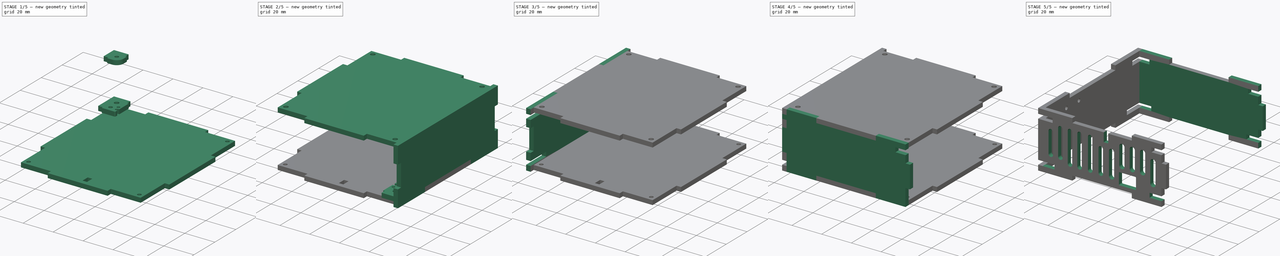
[diagram: build sequence overview — one tinted view per stage of 5, left to right]
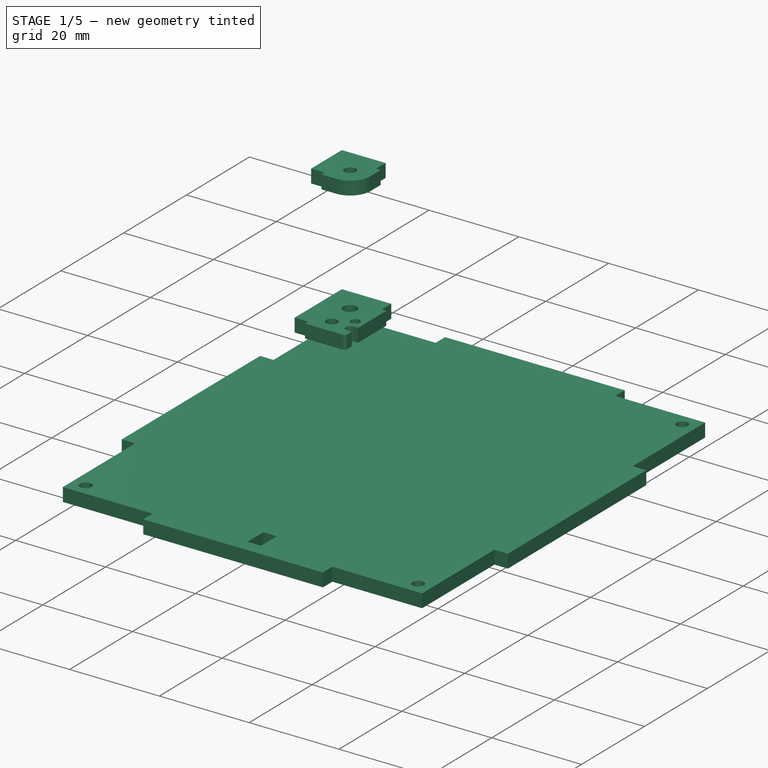
[diagram: stage 1 of 5 — iso view after this stage's code; geometry added in this stage tinted green]
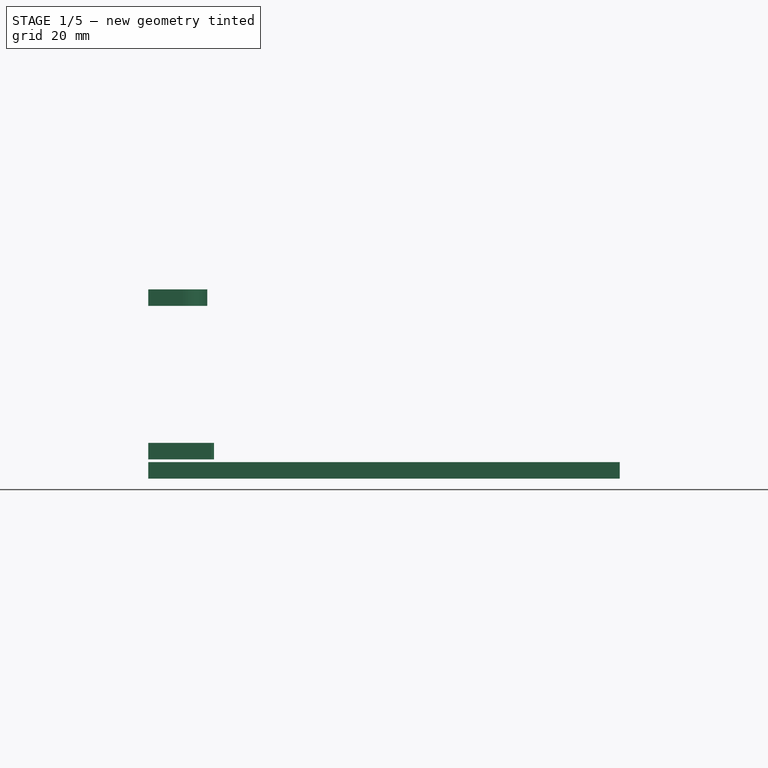
[diagram: stage 1 of 5 — front view after this stage's code; geometry added in this stage tinted green]
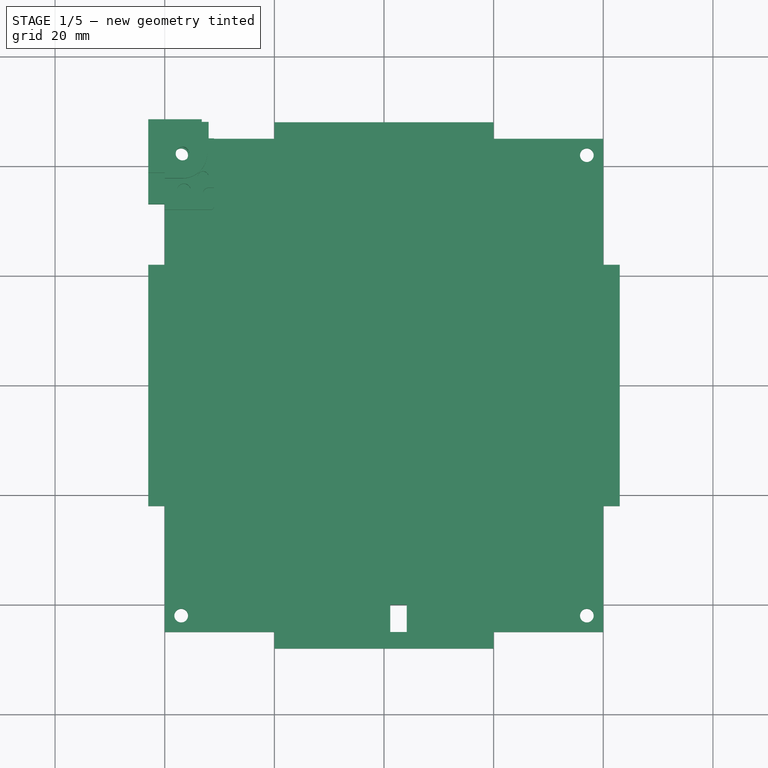
[diagram: stage 1 of 5 — top view after this stage's code; geometry added in this stage tinted green]
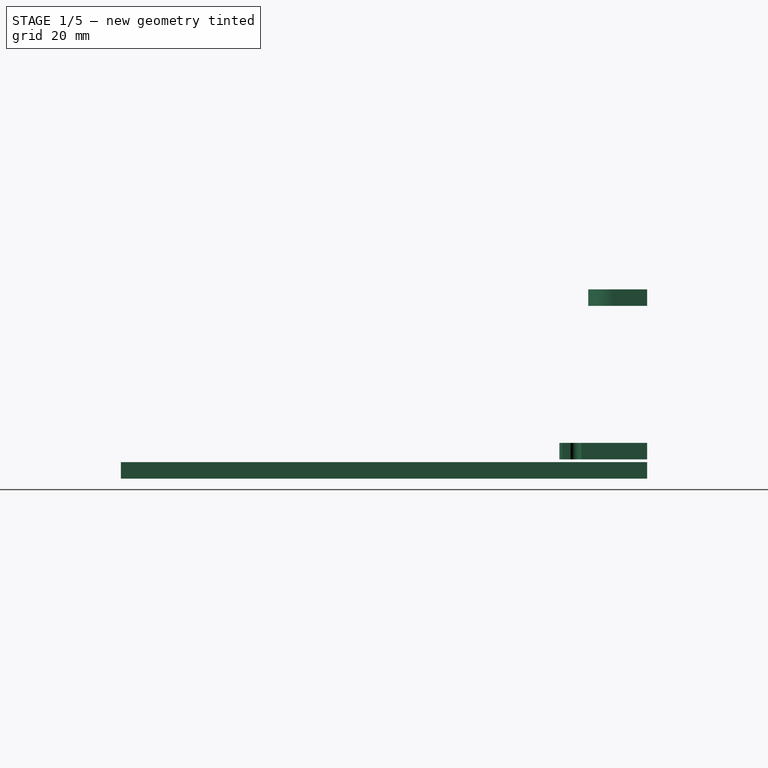
[diagram: stage 1 of 5 — right view after this stage's code; geometry added in this stage tinted green]
FCSTD DOCUMENT  (FreeCAD 0.19R24267 +99 (Git))
Label: airgradient-case
License: All rights reserved
LicenseURL: http://en.wikipedia.org/wiki/All_rights_reserved
objects: TechDraw::DrawViewPart×15, App::DocumentObjectGroup×14, Sketcher::SketchObject×11, Part::Extrusion×11, Part::Cut×10, Part::Mirroring×8, Part::FeaturePython×8, Spreadsheet::Sheet×1, TechDraw::DrawSVGTemplate×1, TechDraw::DrawPage×1
note: 48 computed .brp shape members not serialized (recipe doc carries the construction recipe); baked Part::Feature solids carry a one-line shape summary decoded from their .brp

FEATURE [Part::Extrusion] Extrude001  label="BottomPanel1"
  Base = -> Sketch003
  Dir = (0,0,1)
  DirMode = 2
  FaceMakerClass = Part::FaceMakerBullseye
  LengthFwd = -19
  LengthRev = 16
  Solid = true
  Symmetric = false
  expr: LengthRev = <<Params>>.IH / 2
  expr: LengthFwd = -<<Params>>.IH / 2 - <<Params>>.PThick
FEATURE [Sketcher::SketchObject] Sketch004  label="TopFixingDraw"
  ExternalGeometry = -> [Sketch003]
  FullyConstrained = true
  expr: Constraints[31] = <<Params>>.PThick
  expr: Constraints[32] = <<Params>>.PThick
  sketch-geometry (15):
    g0: Circle CenterX=-36.75 CenterY=41.75 CenterZ=0 NormalX=0 NormalY=0 NormalZ=1 AngleXU=0 Radius=2.75
    g1: LineSegment StartX=-43 StartY=48 StartZ=0 EndX=-33.25 EndY=48 EndZ=0
    g2: LineSegment StartX=-32.25 StartY=45 StartZ=0 EndX=-32.25 EndY=41.75 EndZ=0
    g3: LineSegment StartX=-36.75 StartY=37.25 StartZ=0 EndX=-40 EndY=37.25 EndZ=0
    g4: LineSegment StartX=-43 StartY=38.25 StartZ=0 EndX=-43 EndY=48 EndZ=0
    g5: ArcOfCircle CenterX=-36.75 CenterY=41.75 CenterZ=0 NormalX=0 NormalY=0 NormalZ=1 AngleXU=0 Radius=4.5 StartAngle=4.71239 EndAngle=6.28319
    g6: Circle CenterX=-36.75 CenterY=41.75 CenterZ=0 NormalX=0 NormalY=0 NormalZ=1 AngleXU=0 Radius=1.25
    g7: LineSegment StartX=-33.25 StartY=48 StartZ=0 EndX=-33.25 EndY=45 EndZ=0
    g8: LineSegment StartX=-33.25 StartY=45 StartZ=0 EndX=-32.25 EndY=45 EndZ=0
    g9: GeomPoint X=-32.25 Y=45 Z=0
    g10: GeomPoint X=-40 Y=37.25 Z=0
    g11: GeomPoint X=-32.25 Y=45 Z=0
    g12: LineSegment StartX=-43 StartY=38.25 StartZ=0 EndX=-40 EndY=38.25 EndZ=0
    g13: LineSegment StartX=-40 StartY=38.25 StartZ=0 EndX=-40 EndY=37.25 EndZ=0
    g14: GeomPoint X=-36.75 Y=41.75 Z=0
  constraints (35):
    c: Diameter(g0) = 5.5
    c: Coincident(g4,g1)
    c: Horizontal(g1)
    c: Horizontal(g3)
    c: Vertical(g2)
    c: Vertical(g4)
    c: Equal(g4,g1)
    c: Tangent(g2,g5) = 1.5708
    c: Tangent(g3,g5) = 1.5708
    c: Coincident(g5,g0)
    c: Radius(g5) = 4.5
    c: Distance(g5,g-3) = 3.25
    c: Coincident(g6,g5)
    c: Diameter(g6) = 2.5
    c: Coincident(g1,g7)
    c: Vertical(g7)
    c: Coincident(g7,g8)
    c: Coincident(g8,g2)
    c: Horizontal(g8)
    c: DistanceX(g8,g8) = 1
    c: PointOnObject(g10,g-4)
    c: Coincident(g9,g2)
    c: PointOnObject(g11,g-3)
    c: Coincident(g2,g11)
    c: Coincident(g4,g12)
    c: Horizontal(g12)
    c: Coincident(g12,g13)
    c: Coincident(g13,g3)
    c: Vertical(g13)
    c: Coincident(g3,g10)
    c: DistanceY(g13,g13) = 1
    c: DistanceX(g12,g12) = 3
    c: DistanceY(g7,g7) = 3
    c: DistanceX(g1,g1) = 9.75
    c: Coincident(g14,g5)
FEATURE [Part::Extrusion] Extrude006  label="TBLX"
  Base = -> Sketch004
  Dir = (0,0,1)
  DirMode = 2
  FaceMakerClass = Part::FaceMakerBullseye
  LengthFwd = 15.5
  LengthRev = -12.5
  Solid = true
  Symmetric = false
  expr: LengthFwd = <<Params>>.IH / 2 - 0.5
  expr: LengthRev = -<<Params>>.IH / 2 + <<Params>>.PThick + 0.5
FEATURE [Sketcher::SketchObject] Sketch007  label="PCASketch"
  FullyConstrained = true
  expr: Constraints[13] = 76 / 2
  expr: Constraints[12] = 66 / 2
  sketch-geometry (22):
    g0: LineSegment StartX=-35 StartY=40 StartZ=0 EndX=35 EndY=40 EndZ=0
    g1: LineSegment StartX=35 StartY=40 StartZ=0 EndX=35 EndY=-40 EndZ=0
    g2: LineSegment StartX=35 StartY=-40 StartZ=0 EndX=-35 EndY=-40 EndZ=0
    g3: LineSegment StartX=-35 StartY=-40 StartZ=0 EndX=-35 EndY=40 EndZ=0
    g4: Circle CenterX=-33 CenterY=38 CenterZ=0 NormalX=0 NormalY=0 NormalZ=1 AngleXU=0 Radius=1
    g5: LineSegment StartX=-18.8 StartY=37.5 StartZ=0 EndX=31.2 EndY=37.5 EndZ=0
    g6: LineSegment StartX=31.2 StartY=37.5 StartZ=0 EndX=31.2 EndY=-0.5 EndZ=0
    g7: LineSegment StartX=31.2 StartY=-0.5 StartZ=0 EndX=-18.8 EndY=-0.5 EndZ=0
    g8: LineSegment StartX=-18.8 StartY=-0.5 StartZ=0 EndX=-18.8 EndY=37.5 EndZ=0
    g9: LineSegment StartX=4.3 StartY=-5 StartZ=0 EndX=30.3 EndY=-5 EndZ=0
    g10: LineSegment StartX=30.3 StartY=-5 StartZ=0 EndX=30.3 EndY=-39 EndZ=0
    g11: LineSegment StartX=30.3 StartY=-39 StartZ=0 EndX=4.3 EndY=-39 EndZ=0
    g12: LineSegment StartX=4.3 StartY=-39 StartZ=0 EndX=4.3 EndY=-5 EndZ=0
    g13: LineSegment StartX=-19 StartY=-4 StartZ=0 EndX=1 EndY=-4 EndZ=0
    g14: LineSegment StartX=1 StartY=-4 StartZ=0 EndX=1 EndY=-38 EndZ=0
    g15: LineSegment StartX=1 StartY=-38 StartZ=0 EndX=-19 EndY=-38 EndZ=0
    g16: LineSegment StartX=-19 StartY=-38 StartZ=0 EndX=-19 EndY=-4 EndZ=0
    g17: GeomPoint X=2.65 Y=-0.5 Z=0
    g18: GeomPoint X=2.65 Y=-40 Z=0
    g19: LineSegment StartX=2.65 StartY=-0.5 StartZ=0 EndX=2.65 EndY=-40 EndZ=0
    g20: LineSegment StartX=1 StartY=-38 StartZ=0 EndX=4.3 EndY=-39 EndZ=0
    g21: GeomPoint X=2.65 Y=-38.5 Z=0
  constraints (63):
    c: Coincident(g0,g1)
    c: Coincident(g1,g2)
    c: Coincident(g2,g3)
    c: Coincident(g3,g0)
    c: Horizontal(g0)
    c: Horizontal(g2)
    c: Vertical(g1)
    c: Vertical(g3)
    c: DistanceX(g0,g0) = 70
    c: DistanceY(g1,g1) = 80
    c: Symmetric(g1,g0,g-1)
    c: Diameter(g4) = 2
    c: DistanceX(g4,g-1) = 33
    c: DistanceY(g-1,g4) = 38
    c: Coincident(g5,g6)
    c: Coincident(g6,g7)
    c: Coincident(g7,g8)
    c: Coincident(g8,g5)
    c: Horizontal(g5)
    c: Horizontal(g7)
    c: Vertical(g6)
    c: Vertical(g8)
    c: DistanceY(g6,g6) = 38
    c: DistanceX(g7,g7) = 50
    c: Distance(g7,g2) = 39.5
    c: Distance(g6,g1) = 3.8
    c: Coincident(g9,g10)
    c: Coincident(g10,g11)
    c: Coincident(g11,g12)
    c: Coincident(g12,g9)
    c: Horizontal(g9)
    c: Horizontal(g11)
    c: Vertical(g10)
    c: Vertical(g12)
    c: Coincident(g13,g14)
    c: Coincident(g14,g15)
    c: Coincident(g15,g16)
    c: Coincident(g16,g13)
    c: Horizontal(g13)
    c: Horizontal(g15)
    c: Vertical(g14)
    c: Vertical(g16)
    c: DistanceX(g11,g11) = 26
    c: DistanceY(g10,g10) = 34
    c: DistanceX(g13,g13) = 20
    c: DistanceY(g16,g16) = 34
    c: Distance(g15,g2) = 2
    c: Distance(g10,g2) = 1
    c: Distance(g15,g3) = 16
    c: Distance(g10,g1) = 4.7
    c: DistanceX(g14,g11) = 3.3
    c: DistanceX(g11,g1) = 30.7
    c: DistanceX(g2,g14) = 36
    c: PointOnObject(g17,g7)
    c: PointOnObject(g18,g2)
    c: Coincident(g19,g17)
    c: Coincident(g19,g18)
    c: Vertical(g19)
    c: Coincident(g20,g14)
    c: Coincident(g20,g11)
    c: PointOnObject(g21,g19)
    c: Symmetric(g14,g11,g21)
    c: DistanceX(g-1,g18) = 2.65  'DividerOffset'
FEATURE [Sketcher::SketchObject] Sketch005  label="BottomFixingDraw"
  ExternalGeometry = -> [Sketch003,Sketch007]
  FullyConstrained = false
  expr: Constraints[21] = Sketch004.Constraints[30]
  expr: Constraints[22] = Sketch004.Constraints[31]
  expr: Constraints[23] = Sketch004.Constraints[32]
  expr: Constraints[10] = Sketch004.Constraints[19]
  sketch-geometry (26):
    g0: Circle CenterX=-37 CenterY=42 CenterZ=0 NormalX=0 NormalY=0 NormalZ=1 AngleXU=0 Radius=3
    g1: LineSegment StartX=-43 StartY=48 StartZ=0 EndX=-32 EndY=48 EndZ=0
    g2: LineSegment StartX=-31 StartY=45 StartZ=0 EndX=-31 EndY=36 EndZ=0
    g3: LineSegment StartX=-31.6 StartY=32 StartZ=0 EndX=-40 EndY=32 EndZ=0
    g4: LineSegment StartX=-43 StartY=33 StartZ=0 EndX=-43 EndY=48 EndZ=0
    g5: Circle CenterX=-37 CenterY=42 CenterZ=0 NormalX=0 NormalY=0 NormalZ=1 AngleXU=0 Radius=1.5
    g6: LineSegment StartX=-32 StartY=48 StartZ=0 EndX=-32 EndY=45 EndZ=0
    g7: LineSegment StartX=-32 StartY=45 StartZ=0 EndX=-31 EndY=45 EndZ=0
    g8: GeomPoint X=-31 Y=45 Z=0
    g9: GeomPoint X=-40 Y=32 Z=0
    g10: GeomPoint X=-31 Y=45 Z=0
    g11: LineSegment StartX=-43 StartY=33 StartZ=0 EndX=-40 EndY=33 EndZ=0
    g12: LineSegment StartX=-40 StartY=33 StartZ=0 EndX=-40 EndY=32 EndZ=0
    g13: Circle CenterX=-33 CenterY=38 CenterZ=0 NormalX=0 NormalY=0 NormalZ=1 AngleXU=0 Radius=1
    g14: Circle CenterX=-36.5 CenterY=35.5 CenterZ=0 NormalX=0 NormalY=0 NormalZ=1 AngleXU=0 Radius=1.25
    g15: Circle CenterX=-36.5 CenterY=35.5 CenterZ=0 NormalX=0 NormalY=0 NormalZ=1 AngleXU=0 Radius=2.65
    g16: GeomPoint X=-37 Y=42 Z=0
    g17: LineSegment StartX=-31 StartY=36 StartZ=0 EndX=-32 EndY=36 EndZ=0
    g18: LineSegment StartX=-32 StartY=34 StartZ=0 EndX=-31 EndY=34 EndZ=0
    g19: LineSegment StartX=-31 StartY=34 StartZ=0 EndX=-31 EndY=32.6 EndZ=0
    g20: ArcOfCircle CenterX=-31.6 CenterY=32.6 CenterZ=0 NormalX=0 NormalY=0 NormalZ=1 AngleXU=0 Radius=0.6 StartAngle=4.71239 EndAngle=6.28319
    g21: ArcOfCircle CenterX=-32 CenterY=35 CenterZ=0 NormalX=0 NormalY=0 NormalZ=1 AngleXU=0 Radius=1 StartAngle=1.5708 EndAngle=4.71239
    g22: LineSegment StartX=-32 StartY=36 StartZ=0 EndX=-32 EndY=34 EndZ=0
    g23: GeomPoint X=-32 Y=35 Z=0
    g24: GeomPoint X=-37 Y=42 Z=0
    g25: Circle CenterX=-37 CenterY=42 CenterZ=0 NormalX=0 NormalY=0 NormalZ=1 AngleXU=0 Radius=1.25
  constraints (60):
    c: Coincident(g4,g1)
    c: Horizontal(g1)
    c: Horizontal(g3)
    c: Vertical(g2)
    c: Vertical(g4)
    c: Coincident(g1,g6)
    c: Vertical(g6)
    c: Coincident(g6,g7)
    c: Coincident(g7,g2)
    c: Horizontal(g7)
    c: DistanceX(g7,g7) = 1
    c: PointOnObject(g9,g-4)
    c: Coincident(g8,g2)
    c: PointOnObject(g10,g-3)
    c: Coincident(g2,g10)
    c: Coincident(g4,g11)
    c: Horizontal(g11)
    c: Coincident(g11,g12)
    c: Coincident(g12,g3)
    c: Vertical(g12)
    c: Coincident(g3,g9)
    c: DistanceY(g12,g12) = 1
    c: DistanceX(g11,g11) = 3
    c: DistanceY(g6,g6) = 3
    c: Diameter(g5) = 3
    c: Coincident(g15,g14)
    c: Diameter(g14) = 2.5
    c: Diameter(g15) = 5.3
    c: Coincident(g5,g0)
    c: Coincident(g5,g16)
    c: Tangent(g0,g-3)
    c: Tangent(g0,g-4)
    c: Diameter(g0) = 6
    c: Distance(g14,g3) = 3.5
    c: DistanceX(g1,g1) = 11
    c: DistanceY(g4,g4) = 15
    c: Horizontal(g18)
    c: Horizontal(g17)
    c: Coincident(g2,g17)
    c: Coincident(g19,g18)
    c: Tangent(g2,g19)
    c: Distance(g2,g18) = 2
    c: Diameter(g13) = 2
    c: Distance(g-4,g11) = 11
    c: Tangent(g3,g20) = 1.5708
    c: Tangent(g19,g20) = 1.5708
    c: Radius(g20) = 0.6
    c: Coincident(g21,g17)
    c: Coincident(g21,g18)
    c: Coincident(g22,g17)
    c: Coincident(g22,g18)
    c: Vertical(g22)
    c: PointOnObject(g23,g22)
    c: Coincident(g21,g23)
    c: Tangent(g22,g13)
    c: DistanceY(g21,g13) = 3
    c: Coincident(g13,g-5)
    c: Distance(g14,g-7) = 1.5
    c: Coincident(g25,g5)
    c: Diameter(g25) = 2.5
FEATURE [Part::Extrusion] Extrude007  label="BBLX"
  Base = -> Sketch005
  Dir = (0,0,1)
  DirMode = 2
  FaceMakerClass = Part::FaceMakerBullseye
  LengthFwd = -15.5
  LengthRev = 12.5
  Solid = true
  Symmetric = false
  expr: LengthFwd = -<<Params>>.IH / 2 + 0.5
  expr: LengthRev = <<Params>>.IH / 2 - <<Params>>.PThick - 0.5
FEATURE [Sketcher::SketchObject] Sketch006  label="DividerSketch"
  ExternalGeometry = -> [Sketch007]
  FullyConstrained = true
  Placement = pos=(0,0,0) rot=(0.57735,0.57735,0.57735;2.0944rad)
  expr: Constraints[19] = <<Params>>.PThick
  expr: Constraints[18] = <<Params>>.IH / 2 + <<Params>>.PThick
  expr: Constraints[11] = <<Params>>.IL / 2
  expr: Constraints[12] = <<Params>>.IH / 2
  expr: Constraints[6] = <<Params>>.IH / 2 - <<Params>>.PThick - 0.5 - <<Params>>.PcbT
  sketch-geometry (10):
    g0: LineSegment StartX=-48 StartY=16 StartZ=0 EndX=-0.5 EndY=16 EndZ=0
    g1: LineSegment StartX=-0.5 StartY=16 StartZ=0 EndX=-0.5 EndY=-10.9 EndZ=0
    g2: LineSegment StartX=-0.5 StartY=-10.9 StartZ=0 EndX=-40 EndY=-10.9 EndZ=0
    g3: LineSegment StartX=-45 StartY=-19 StartZ=0 EndX=-45 EndY=10 EndZ=0
    g4: LineSegment StartX=-45 StartY=-19 StartZ=0 EndX=-40 EndY=-19 EndZ=0
    g5: LineSegment StartX=-40 StartY=-19 StartZ=0 EndX=-40 EndY=-10.9 EndZ=0
    g6: LineSegment StartX=-48 StartY=16 StartZ=0 EndX=-48 EndY=10 EndZ=0
    g7: LineSegment StartX=-48 StartY=10 StartZ=0 EndX=-45 EndY=10 EndZ=0
    g8: GeomPoint X=-0.5 Y=0 Z=0
    g9: LineSegment StartX=-40 StartY=0 StartZ=0 EndX=-40 EndY=-10.9 EndZ=0
  constraints (27):
    c: Coincident(g0,g1)
    c: Coincident(g1,g2)
    c: Horizontal(g0)
    c: Horizontal(g2)
    c: Vertical(g1)
    c: Vertical(g3)
    c: DistanceY(g2,g-1) = 10.9
    c: Coincident(g3,g4)
    c: Horizontal(g4)
    c: Coincident(g4,g5)
    c: Vertical(g5)
    c: DistanceX(g3,g-1) = 45
    c: DistanceY(g-1,g0) = 16
    c: Coincident(g0,g6)
    c: Vertical(g6)
    c: Coincident(g6,g7)
    c: Coincident(g7,g3)
    c: Horizontal(g7)
    c: DistanceY(g3,g-1) = 19
    c: DistanceX(g7,g7) = 3
    c: DistanceY(g6,g6) = 6
    c: Coincident(g5,g2)
    c: PointOnObject(g8,g1)
    c: Coincident(g-4,g8)
    c: Coincident(g9,g-3)
    c: Vertical(g9)
    c: Coincident(g9,g2)
FEATURE [Part::Extrusion] Extrude008  label="Divider001"
  Base = -> Sketch006
  Dir = (1,0,0)
  DirMode = 2
  FaceMakerClass = Part::FaceMakerBullseye
  LengthFwd = 4.15
  LengthRev = -1.15
  Solid = true
  Symmetric = false
  expr: LengthFwd = Sketch007.Constraints.DividerOffset + <<Params>>.PThick / 2 * 1mm
  expr: LengthRev = -Sketch007.Constraints.DividerOffset + <<Params>>.PThick / 2 * 1mm
FEATURE [App::DocumentObjectGroup] GrExplode_Slice  label="TopPanel001"
  Group = -> [Slice_child0]
FEATURE [Part::Cut] Cut009  label="BottomPanel001"
  Base = -> Extrude001
  Tool = -> Extrude008
FEATURE [Sketcher::SketchObject] Sketch009  label="BottomPanelDecoration"
  ExternalGeometry = -> [Sketch005]
  FullyConstrained = true
  MapMode = 2
  Support = -> [Cut009]
  sketch-geometry (4):
    g0: Circle CenterX=-37 CenterY=42 CenterZ=0 NormalX=0 NormalY=0 NormalZ=1 AngleXU=0 Radius=1.25
    g1: Circle CenterX=37 CenterY=42 CenterZ=0 NormalX=0 NormalY=0 NormalZ=1 AngleXU=0 Radius=1.25
    g2: Circle CenterX=-37 CenterY=-42 CenterZ=0 NormalX=0 NormalY=0 NormalZ=1 AngleXU=0 Radius=1.25
    g3: Circle CenterX=37 CenterY=-42 CenterZ=0 NormalX=0 NormalY=0 NormalZ=1 AngleXU=0 Radius=1.25
  constraints (8):
    c: Coincident(g0,g-3)
    c: Diameter(g0) = 2.5
    c: Diameter(g1) = 2.5
    c: Diameter(g2) = 2.5
    c: Diameter(g3) = 2.5
    c: Symmetric(g0,g1,g-2)
    c: Symmetric(g0,g2,g-1)
    c: Symmetric(g1,g3,g-1)
FEATURE [Part::Extrusion] Extrude010  label="BottomPanelPunch"
  Base = -> Sketch009
  Dir = (0,0,1)
  DirMode = 2
  FaceMakerClass = Part::FaceMakerBullseye
  LengthFwd = 40
  LengthRev = 0
  Reversed = true
  Solid = false
  Symmetric = false
FEATURE [Part::FeaturePython] Slice001  # WARN: FeaturePython — macro-defined, semantics opaque (R4)
  Base = -> Cut009
  Mode = 1
  Tolerance = 0
  Tools = -> [Extrude010]
FEATURE [Part::FeaturePython] Slice001_child0  label="Slice001.0"  # WARN: FeaturePython — macro-defined, semantics opaque (R4)
  Base = -> Slice001
  FilterType = 1
  Invert = false
  OverrideMaxVal = 0
  WindowFrom = 80
  WindowTo = 100
  items = 0
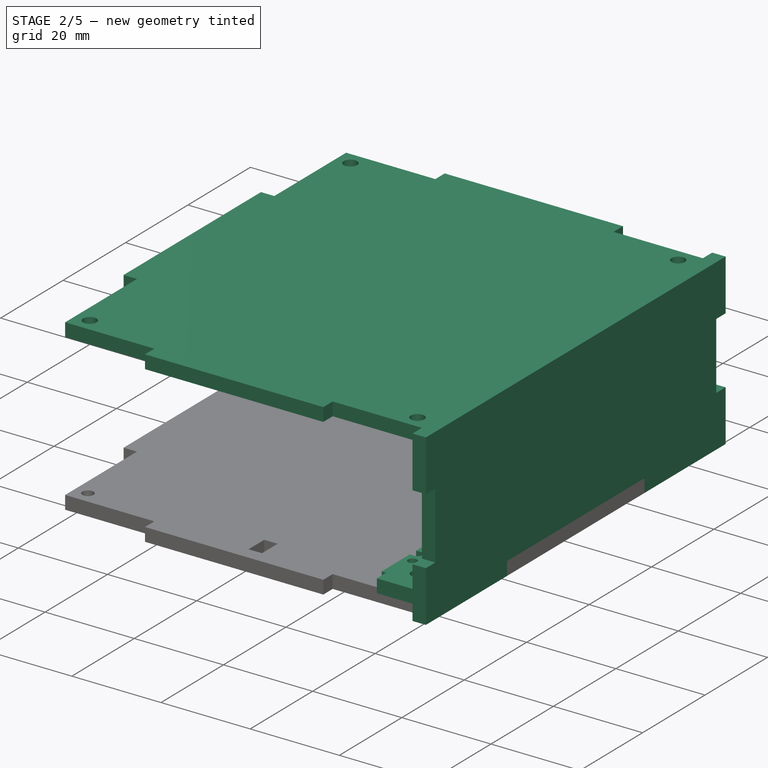
[diagram: stage 2 of 5 — iso view after this stage's code; geometry added in this stage tinted green]
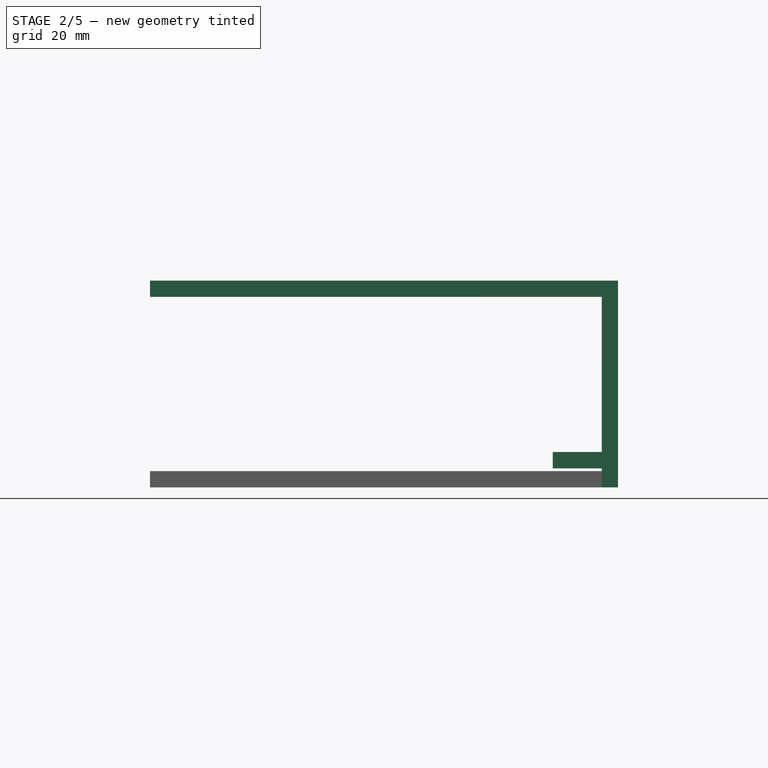
[diagram: stage 2 of 5 — front view after this stage's code; geometry added in this stage tinted green]
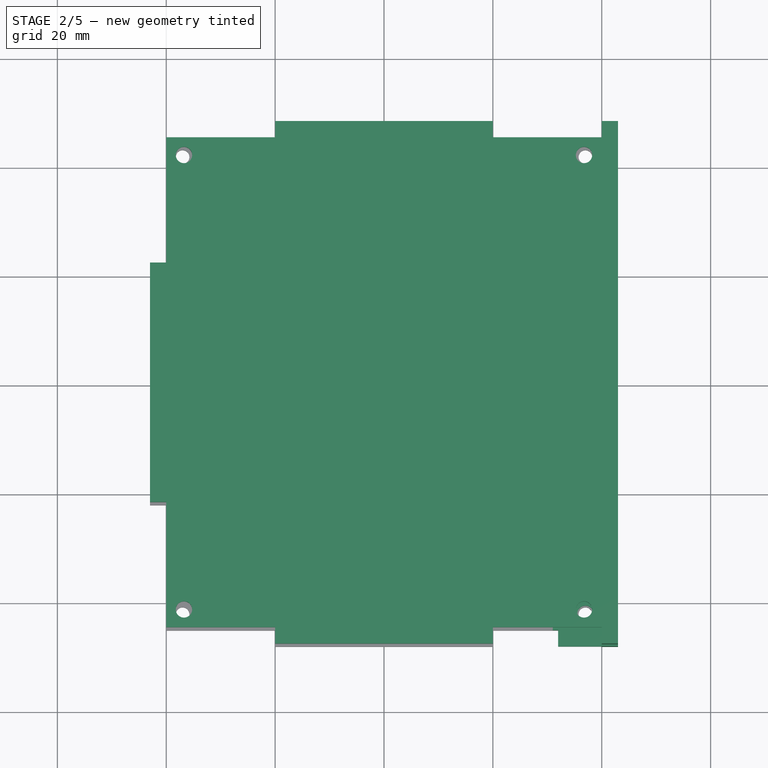
[diagram: stage 2 of 5 — top view after this stage's code; geometry added in this stage tinted green]
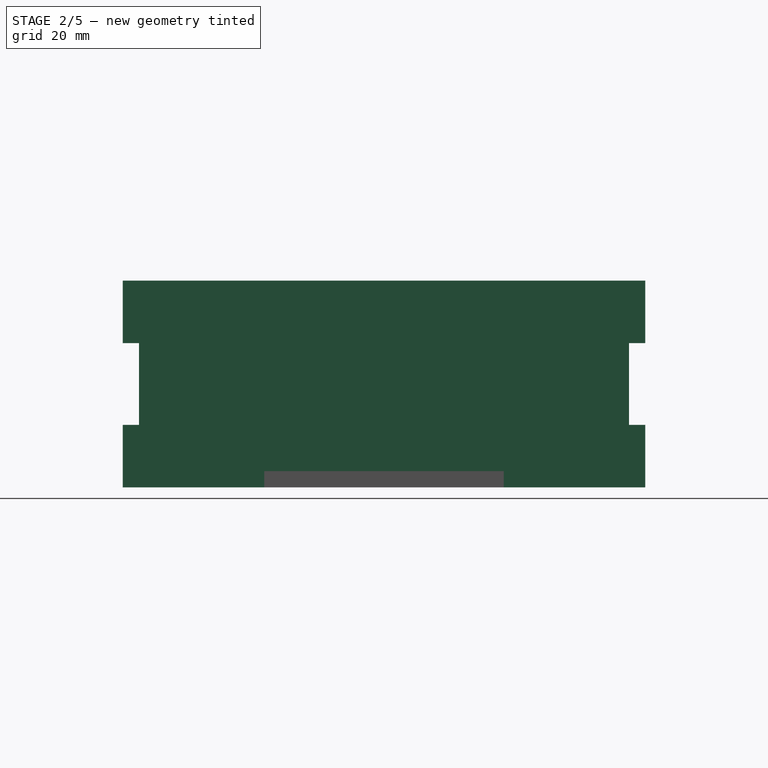
[diagram: stage 2 of 5 — right view after this stage's code; geometry added in this stage tinted green]
FEATURE [Spreadsheet::Sheet] Spreadsheet  label="Params"
  cells = A2=Perspex thickness; B2(PThick)=3; A3=Perspex thickness min; B3(PThickMin)=2.3; A4=Perspec thickness max; B4(PThickMax)=3.7; A5=Internal Height; B5(IH)=32; A6=Internal Length; B6(IL)=90; A7=Internal Width; B7(IW)=80; A8=Laser cut width; B8(CutWidth)=0.15; A9=PCB thickness; B9(PcbT)=1.6
FEATURE [Sketcher::SketchObject] Sketch  label="Front"
  FullyConstrained = false
  Placement = pos=(0,0,0) rot=(1,0,0;1.5708rad)
  expr: Constraints[65] = <<Params>>.IH
  expr: Constraints[74] = <<Params>>.IW
  expr: Constraints[48] = <<Params>>.PThick
  sketch-geometry (33):
    g0: LineSegment StartX=-40 StartY=-19 StartZ=0 EndX=-20 EndY=-19 EndZ=0
    g1: LineSegment StartX=43 StartY=-7.5 StartZ=0 EndX=43 EndY=7.5 EndZ=0
    g2: LineSegment StartX=40 StartY=19 StartZ=0 EndX=20 EndY=19 EndZ=0
    g3: LineSegment StartX=-43 StartY=7.5 StartZ=0 EndX=-43 EndY=-7.5 EndZ=0
    g4: GeomPoint X=43 Y=-8.62989e-07 Z=0
    g5: GeomPoint X=-43 Y=-4.49e-14 Z=0
    g6: LineSegment StartX=-43 StartY=7.5 StartZ=0 EndX=-40 EndY=7.5 EndZ=0
    g7: LineSegment StartX=-43 StartY=-7.5 StartZ=0 EndX=-40 EndY=-7.5 EndZ=0
    g8: LineSegment StartX=-40 StartY=-7.5 StartZ=0 EndX=-40 EndY=-19 EndZ=0
    g9: LineSegment StartX=-40 StartY=7.5 StartZ=0 EndX=-40 EndY=19 EndZ=0
    g10: GeomPoint X=-43 Y=-7.5 Z=0
    g11: GeomPoint X=-40 Y=-19 Z=0
    g12: GeomPoint X=-40 Y=19 Z=0
    g13: GeomPoint X=45.5 Y=-4.49e-14 Z=0
    g14: LineSegment StartX=43 StartY=7.5 StartZ=0 EndX=40 EndY=7.5 EndZ=0
    g15: LineSegment StartX=43 StartY=-7.5 StartZ=0 EndX=40 EndY=-7.5 EndZ=0
    g16: LineSegment StartX=40 StartY=-7.5 StartZ=0 EndX=40 EndY=-19 EndZ=0
    g17: LineSegment StartX=40 StartY=7.5 StartZ=0 EndX=40 EndY=19 EndZ=0
    g18: GeomPoint X=43 Y=-7.5 Z=0
    g19: GeomPoint X=40 Y=-19 Z=0
    g20: GeomPoint X=40 Y=19 Z=0
    g21: GeomPoint X=40 Y=19 Z=0
    g22: GeomPoint X=43 Y=7.5 Z=0
    g23: GeomPoint X=43 Y=-7.5 Z=0
    g24: GeomPoint X=40 Y=-19 Z=0
    g25: LineSegment StartX=-20 StartY=19 StartZ=0 EndX=-20 EndY=16 EndZ=0
    g26: LineSegment StartX=-20 StartY=16 StartZ=0 EndX=20 EndY=16 EndZ=0
    g27: LineSegment StartX=20 StartY=16 StartZ=0 EndX=20 EndY=19 EndZ=0
    g28: LineSegment StartX=-20 StartY=-19 StartZ=0 EndX=-20 EndY=-16 EndZ=0
    g29: LineSegment StartX=-20 StartY=-16 StartZ=0 EndX=20 EndY=-16 EndZ=0
    g30: LineSegment StartX=20 StartY=-16 StartZ=0 EndX=20 EndY=-19 EndZ=0
    g31: LineSegment StartX=-20 StartY=19 StartZ=0 EndX=-40 EndY=19 EndZ=0
    g32: LineSegment StartX=20 StartY=-19 StartZ=0 EndX=40 EndY=-19 EndZ=0
  constraints (75):
    c: Horizontal(g0)
    c: Horizontal(g2)
    c: Vertical(g3)
    c: PointOnObject(g4,g1)
    c: PointOnObject(g5,g3)
    c: Horizontal(g6)
    c: Coincident(g8,g7)
    c: Coincident(g9,g6)
    c: Vertical(g9)
    c: Vertical(g8)
    c: Horizontal(g7)
    c: DistanceY(g7,g6) = 15  'SideTab'
    c: PointOnObject(g11,g0)
    c: Coincident(g8,g11)
    c: Coincident(g10,g7)
    c: Symmetric(g7,g6,g-1)
    c: PointOnObject(g12,g2)
    c: Coincident(g9,g12)
    c: Horizontal(g14)
    c: Coincident(g16,g15)
    c: Coincident(g17,g14)
    c: Vertical(g17)
    c: Vertical(g16)
    c: Horizontal(g15)
    c: Coincident(g16,g19)
    c: Coincident(g18,g15)
    c: Coincident(g17,g20)
    c: PointOnObject(g15,g7)
    c: PointOnObject(g21,g2)
    c: PointOnObject(g22,g1)
    c: PointOnObject(g23,g1)
    c: Coincident(g17,g21)
    c: Coincident(g14,g22)
    c: Coincident(g15,g23)
    c: Coincident(g16,g24)
    c: PointOnObject(g14,g6)
    c: Vertical(g25)
    c: Coincident(g25,g26)
    c: Coincident(g26,g27)
    c: Vertical(g27)
    c: Vertical(g28)
    c: Coincident(g28,g29)
    c: Horizontal(g29)
    c: Coincident(g29,g30)
    c: Vertical(g30)
    c: PointOnObject(g28,g25)
    c: PointOnObject(g29,g27)
    c: Distance(g25,g27) = 40
    c: DistanceY(g27,g27) = 3
    c: Symmetric(g25,g26,g-2)
    c: Coincident(g2,g27)
    c: Coincident(g31,g25)
    c: Coincident(g0,g28)
    c: Coincident(g32,g30)
    c: Coincident(g3,g6)
    c: PointOnObject(g3,g7)
    c: PointOnObject(g0,g8)
    c: PointOnObject(g1,g15)
    c: PointOnObject(g1,g14)
    c: PointOnObject(g2,g17)
    c: Equal(g27,g30)
    c: Equal(g30,g14)
    c: Equal(g14,g15)
    c: Equal(g25,g6)
    c: Equal(g6,g7)
    c: Distance(g26,g29) = 32
    c: Horizontal(g31)
    c: Horizontal(g32)
    c: Equal(g0,g32)
    c: Equal(g32,g2)
    c: Equal(g9,g8)
    c: Equal(g8,g16)
    c: Coincident(g32,g16)
    c: Coincident(g31,g9)
    c: Distance(g9,g2) = 80
FEATURE [Sketcher::SketchObject] Sketch002  label="Side"
  ExternalGeometry = -> [Sketch]
  FullyConstrained = true
  Placement = pos=(0,0,0) rot=(0.57735,0.57735,0.57735;2.0944rad)
  expr: Constraints[58] = <<Params>>.IL
  expr: Constraints[40] = <<Params>>.PThick
  expr: Constraints[59] = <<Front>>.Constraints.SideTab
  sketch-geometry (22):
    g0: LineSegment StartX=-48 StartY=-19 StartZ=0 EndX=-22 EndY=-19 EndZ=0
    g1: LineSegment StartX=48 StartY=-19 StartZ=0 EndX=48 EndY=-7.5 EndZ=0
    g2: LineSegment StartX=48 StartY=19 StartZ=0 EndX=22 EndY=19 EndZ=0
    g3: LineSegment StartX=-48 StartY=19 StartZ=0 EndX=-48 EndY=7.5 EndZ=0
    g4: LineSegment StartX=-48 StartY=7.5 StartZ=0 EndX=-45 EndY=7.5 EndZ=0
    g5: LineSegment StartX=-45 StartY=7.5 StartZ=0 EndX=-45 EndY=-7.5 EndZ=0
    g6: LineSegment StartX=-45 StartY=-7.5 StartZ=0 EndX=-48 EndY=-7.5 EndZ=0
    g7: LineSegment StartX=-48 StartY=-7.5 StartZ=0 EndX=-48 EndY=-19 EndZ=0
    g8: LineSegment StartX=48 StartY=7.5 StartZ=0 EndX=45 EndY=7.5 EndZ=0
    g9: LineSegment StartX=45 StartY=7.5 StartZ=0 EndX=45 EndY=-7.5 EndZ=0
    g10: LineSegment StartX=45 StartY=-7.5 StartZ=0 EndX=48 EndY=-7.5 EndZ=0
    g11: LineSegment StartX=48 StartY=7.5 StartZ=0 EndX=48 EndY=19 EndZ=0
    g12: LineSegment StartX=-22 StartY=19 StartZ=0 EndX=-22 EndY=16 EndZ=0
    g13: LineSegment StartX=-22 StartY=16 StartZ=0 EndX=22 EndY=16 EndZ=0
    g14: LineSegment StartX=22 StartY=16 StartZ=0 EndX=22 EndY=19 EndZ=0
    g15: LineSegment StartX=-22 StartY=19 StartZ=0 EndX=-48 EndY=19 EndZ=0
    g16: LineSegment StartX=-22 StartY=-19 StartZ=0 EndX=-22 EndY=-16 EndZ=0
    g17: LineSegment StartX=-22 StartY=-16 StartZ=0 EndX=22 EndY=-16 EndZ=0
    g18: LineSegment StartX=22 StartY=-16 StartZ=0 EndX=22 EndY=-19 EndZ=0
    g19: LineSegment StartX=22 StartY=-19 StartZ=0 EndX=48 EndY=-19 EndZ=0
    g20: GeomPoint X=1.78e-14 Y=16 Z=0
    g21: GeomPoint X=-1.78e-14 Y=-16 Z=0
  constraints (61):
    c: Coincident(g19,g1)
    c: Coincident(g11,g2)
    c: Coincident(g15,g3)
    c: Coincident(g7,g0)
    c: Horizontal(g0)
    c: Horizontal(g2)
    c: Vertical(g1)
    c: Vertical(g3)
    c: Horizontal(g4)
    c: Coincident(g4,g5)
    c: Vertical(g5)
    c: Coincident(g5,g6)
    c: Horizontal(g6)
    c: Coincident(g3,g4)
    c: Coincident(g7,g6)
    c: Horizontal(g8)
    c: Coincident(g8,g9)
    c: Vertical(g9)
    c: Coincident(g9,g10)
    c: Horizontal(g10)
    c: Coincident(g1,g10)
    c: Coincident(g11,g8)
    c: Vertical(g12)
    c: Coincident(g12,g13)
    c: Horizontal(g13)
    c: Coincident(g13,g14)
    c: Vertical(g14)
    c: Coincident(g2,g14)
    c: Coincident(g15,g12)
    c: Vertical(g16)
    c: Coincident(g16,g17)
    c: Horizontal(g17)
    c: Coincident(g17,g18)
    c: Vertical(g18)
    c: Coincident(g0,g16)
    c: Coincident(g19,g18)
    c: PointOnObject(g20,g13)
    c: PointOnObject(g21,g17)
    c: Coincident(g20,g-3)
    c: Coincident(g21,g-4)
    c: DistanceX(g4,g4) = 3
    c: Horizontal(g15)
    c: Vertical(g7)
    c: Vertical(g11)
    c: Horizontal(g19)
    c: Equal(g14,g8)
    c: Equal(g8,g10)
    c: Equal(g10,g18)
    c: Equal(g18,g16)
    c: Equal(g16,g6)
    c: Equal(g6,g4)
    c: Equal(g7,g3)
    c: Equal(g3,g11)
    c: Equal(g11,g1)
    c: Equal(g19,g0)
    c: Equal(g0,g15)
    c: Equal(g15,g2)
    c: Symmetric(g12,g2,g-2)
    c: Distance(g4,g8) = 90
    c: DistanceY(g5,g5) = 15
    c: DistanceX(g13,g13) = 44  'TopTab'
FEATURE [Sketcher::SketchObject] Sketch003  label="Top"
  ExternalGeometry = -> [Sketch,Sketch002]
  FullyConstrained = true
  expr: Constraints[55] = <<Params>>.PThick
  sketch-geometry (32):
    g0: LineSegment StartX=-20 StartY=-48 StartZ=0 EndX=20 EndY=-48 EndZ=0
    g1: LineSegment StartX=43 StartY=-22 StartZ=0 EndX=43 EndY=22 EndZ=0
    g2: LineSegment StartX=20 StartY=48 StartZ=0 EndX=-20 EndY=48 EndZ=0
    g3: LineSegment StartX=-43 StartY=22 StartZ=0 EndX=-43 EndY=-22 EndZ=0
    g4: LineSegment StartX=-40 StartY=45 StartZ=0 EndX=-20 EndY=45 EndZ=0
    g5: LineSegment StartX=-20 StartY=45 StartZ=0 EndX=-20 EndY=48 EndZ=0
    g6: LineSegment StartX=20 StartY=48 StartZ=0 EndX=20 EndY=45 EndZ=0
    g7: LineSegment StartX=20 StartY=45 StartZ=0 EndX=40 EndY=45 EndZ=0
    g8: LineSegment StartX=-40 StartY=-45 StartZ=0 EndX=-20 EndY=-45 EndZ=0
    g9: LineSegment StartX=-20 StartY=-45 StartZ=0 EndX=-20 EndY=-48 EndZ=0
    g10: LineSegment StartX=40 StartY=-45 StartZ=0 EndX=20 EndY=-45 EndZ=0
    g11: LineSegment StartX=20 StartY=-45 StartZ=0 EndX=20 EndY=-48 EndZ=0
    g12: GeomPoint X=-43 Y=-8.3e-15 Z=0
    g13: GeomPoint X=0 Y=-48 Z=0
    g14: GeomPoint X=43 Y=-8.3e-15 Z=0
    g15: GeomPoint X=0 Y=48 Z=0
    g16: LineSegment StartX=40 StartY=45 StartZ=0 EndX=40 EndY=22 EndZ=0
    g17: LineSegment StartX=40 StartY=22 StartZ=0 EndX=43 EndY=22 EndZ=0
    g18: LineSegment StartX=40 StartY=-45 StartZ=0 EndX=40 EndY=-22 EndZ=0
    g19: LineSegment StartX=40 StartY=-22 StartZ=0 EndX=43 EndY=-22 EndZ=0
    g20: LineSegment StartX=-43 StartY=-22 StartZ=0 EndX=-40 EndY=-22 EndZ=0
    g21: LineSegment StartX=-40 StartY=-22 StartZ=0 EndX=-40 EndY=-45 EndZ=0
    g22: LineSegment StartX=-43 StartY=22 StartZ=0 EndX=-40 EndY=22 EndZ=0
    g23: LineSegment StartX=-40 StartY=22 StartZ=0 EndX=-40 EndY=45 EndZ=0
    g24: LineSegment StartX=-20 StartY=45 StartZ=0 EndX=-20 EndY=-45 EndZ=0
    g25: LineSegment StartX=20 StartY=45 StartZ=0 EndX=20 EndY=-45 EndZ=0
    g26: LineSegment StartX=-40 StartY=22 StartZ=0 EndX=40 EndY=22 EndZ=0
    g27: LineSegment StartX=-40 StartY=-22 StartZ=0 EndX=40 EndY=-22 EndZ=0
    g28: GeomPoint X=0 Y=22 Z=0
    g29: GeomPoint X=0 Y=-22 Z=0
    g30: GeomPoint X=-20 Y=1.67e-14 Z=0
    g31: GeomPoint X=20 Y=1.67e-14 Z=0
  constraints (76):
    c: Horizontal(g0)
    c: Horizontal(g2)
    c: Vertical(g1)
    c: Vertical(g3)
    c: Horizontal(g4)
    c: Coincident(g4,g5)
    c: Vertical(g5)
    c: Vertical(g6)
    c: Coincident(g6,g7)
    c: Horizontal(g7)
    c: Horizontal(g8)
    c: Coincident(g8,g9)
    c: Vertical(g9)
    c: Horizontal(g10)
    c: Coincident(g10,g11)
    c: Vertical(g11)
    c: PointOnObject(g12,g3)
    c: PointOnObject(g13,g0)
    c: PointOnObject(g14,g1)
    c: PointOnObject(g15,g2)
    c: Coincident(g14,g-4)
    c: Coincident(g12,g-3)
    c: Coincident(g13,g-5)
    c: Coincident(g15,g-6)
    c: Coincident(g2,g5)
    c: Coincident(g2,g6)
    c: Coincident(g0,g9)
    c: Coincident(g0,g11)
    c: Vertical(g16)
    c: Coincident(g16,g17)
    c: Vertical(g18)
    c: Coincident(g18,g19)
    c: Coincident(g20,g21)
    c: Vertical(g21)
    c: Horizontal(g22)
    c: Coincident(g22,g23)
    c: Vertical(g23)
    c: Horizontal(g17)
    c: Horizontal(g19)
    c: Horizontal(g20)
    c: Coincident(g4,g23)
    c: Coincident(g3,g22)
    c: Coincident(g3,g20)
    c: Coincident(g8,g21)
    c: Coincident(g10,g18)
    c: Coincident(g1,g19)
    c: Coincident(g1,g17)
    c: Coincident(g7,g16)
    c: Equal(g5,g6)
    c: Equal(g6,g17)
    c: Equal(g17,g19)
    c: Equal(g19,g11)
    c: Equal(g11,g9)
    c: Equal(g9,g20)
    c: Equal(g20,g22)
    c: DistanceY(g5,g5) = 3
    c: Coincident(g24,g4)
    c: Coincident(g24,g8)
    c: Coincident(g25,g6)
    c: Coincident(g25,g10)
    c: Coincident(g26,g22)
    c: Coincident(g26,g16)
    c: Horizontal(g26)
    c: Coincident(g27,g20)
    c: Coincident(g27,g18)
    c: Horizontal(g27)
    c: Vertical(g25)
    c: Vertical(g24)
    c: PointOnObject(g28,g26)
    c: PointOnObject(g29,g27)
    c: PointOnObject(g30,g24)
    c: PointOnObject(g31,g25)
    c: Coincident(g28,g-8)
    c: Coincident(g-8,g29)
    c: Coincident(g-7,g31)
    c: Coincident(g-7,g30)
FEATURE [Part::Extrusion] Extrude  label="TopPanelTempate"
  Base = -> Sketch003
  Dir = (0,0,1)
  DirMode = 2
  FaceMakerClass = Part::FaceMakerBullseye
  LengthFwd = 19
  LengthRev = -16
  Solid = true
  Symmetric = false
  expr: LengthFwd = <<Params>>.IH / 2 + <<Params>>.PThick
  expr: LengthRev = -<<Params>>.IH / 2
FEATURE [Part::Extrusion] Extrude004  label="RightPanel1"
  Base = -> Sketch002
  Dir = (1,0,0)
  DirMode = 2
  FaceMakerClass = Part::FaceMakerBullseye
  LengthFwd = 40
  LengthRev = -43
  Solid = true
  Symmetric = false
  expr: LengthRev = -<<Params>>.IW / 2 - <<Params>>.PThick
  expr: LengthFwd = <<Params>>.IW / 2
FEATURE [Part::Mirroring] Part__Mirroring004  label="BBRX"
  Base = (0,0,0)
  Normal = (1,0,0)
  Source = -> Extrude007
FEATURE [Part::Mirroring] Part__Mirroring005  label="BFRX"
  Base = (0,0,0)
  Normal = (0,1,0)
  Source = -> Part__Mirroring004
FEATURE [Sketcher::SketchObject] Sketch008  label="TopPanelDecoration"
  ExternalGeometry = -> [Extrude006]
  FullyConstrained = true
  MapMode = 2
  sketch-geometry (4):
    g0: Circle CenterX=-36.75 CenterY=41.75 CenterZ=0 NormalX=0 NormalY=0 NormalZ=1 AngleXU=0 Radius=1.5
    g1: Circle CenterX=36.75 CenterY=41.75 CenterZ=0 NormalX=0 NormalY=0 NormalZ=1 AngleXU=0 Radius=1.5
    g2: Circle CenterX=-36.75 CenterY=-41.75 CenterZ=0 NormalX=0 NormalY=0 NormalZ=1 AngleXU=0 Radius=1.5
    g3: Circle CenterX=36.75 CenterY=-41.75 CenterZ=0 NormalX=0 NormalY=0 NormalZ=1 AngleXU=0 Radius=1.5
  constraints (9):
    c: Diameter(g0) = 3
    c: Diameter(g-3) = 2.5
    c: Coincident(g-3,g0)
    c: Diameter(g1) = 3
    c: Diameter(g2) = 3
    c: Diameter(g3) = 3
    c: Symmetric(g0,g1,g-2)
    c: Symmetric(g0,g2,g-1)
    c: Symmetric(g1,g3,g-1)
FEATURE [Part::Extrusion] Extrude009  label="TopPanelPunch"
  Base = -> Sketch008
  Dir = (0,0,1)
  DirMode = 2
  FaceMakerClass = Part::FaceMakerBullseye
  LengthFwd = 50
  LengthRev = 0
  Solid = false
  Symmetric = false
FEATURE [Part::FeaturePython] Slice  # WARN: FeaturePython — macro-defined, semantics opaque (R4)
  Base = -> Extrude
  Mode = 1
  Tolerance = 0
  Tools = -> [Extrude009]
FEATURE [Part::FeaturePython] Slice_child0  label="Slice.0"  # WARN: FeaturePython — macro-defined, semantics opaque (R4)
  Base = -> Slice
  FilterType = 1
  Invert = false
  OverrideMaxVal = 0
  WindowFrom = 80
  WindowTo = 100
  items = 0
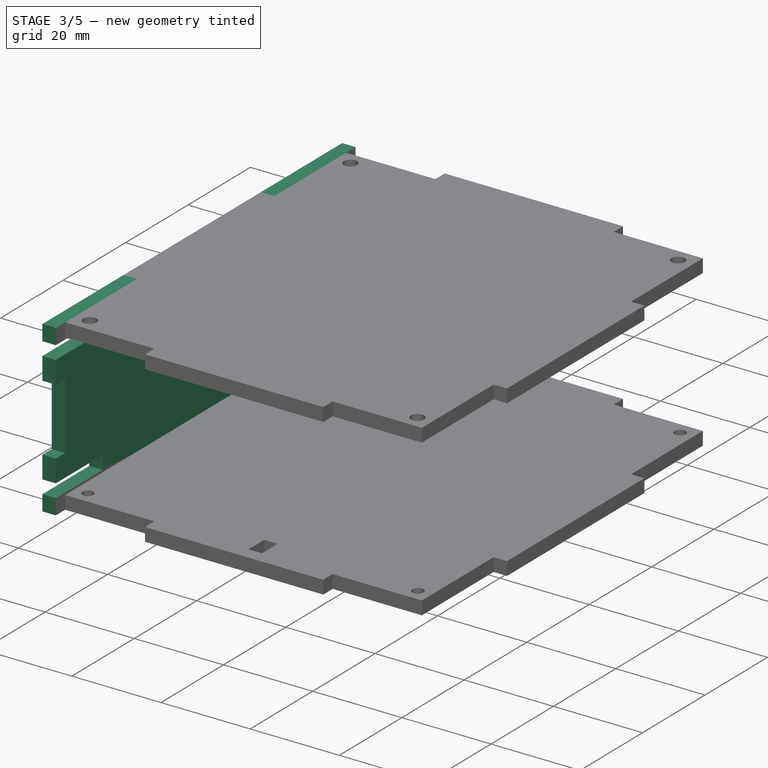
[diagram: stage 3 of 5 — iso view after this stage's code; geometry added in this stage tinted green]
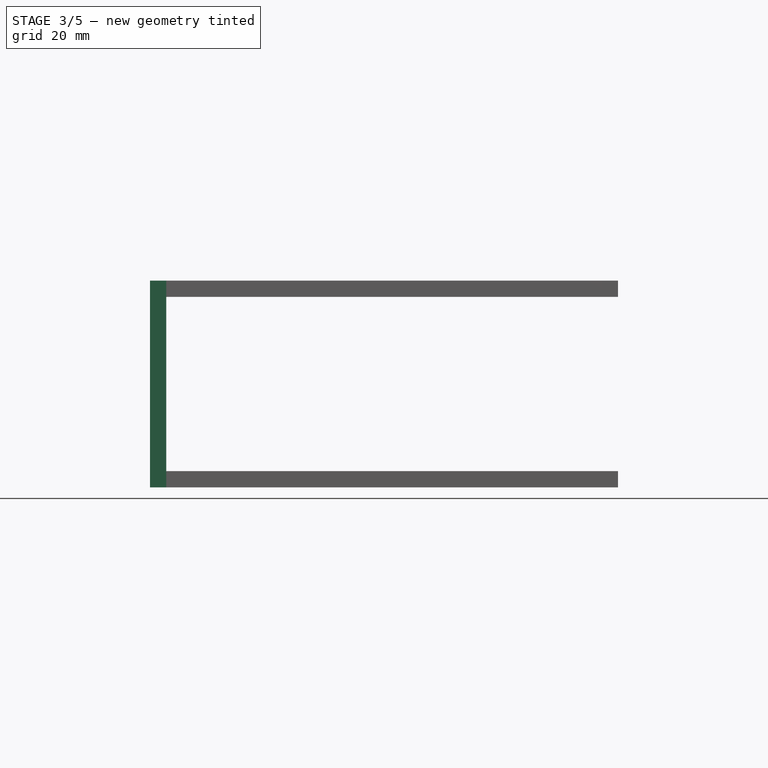
[diagram: stage 3 of 5 — front view after this stage's code; geometry added in this stage tinted green]
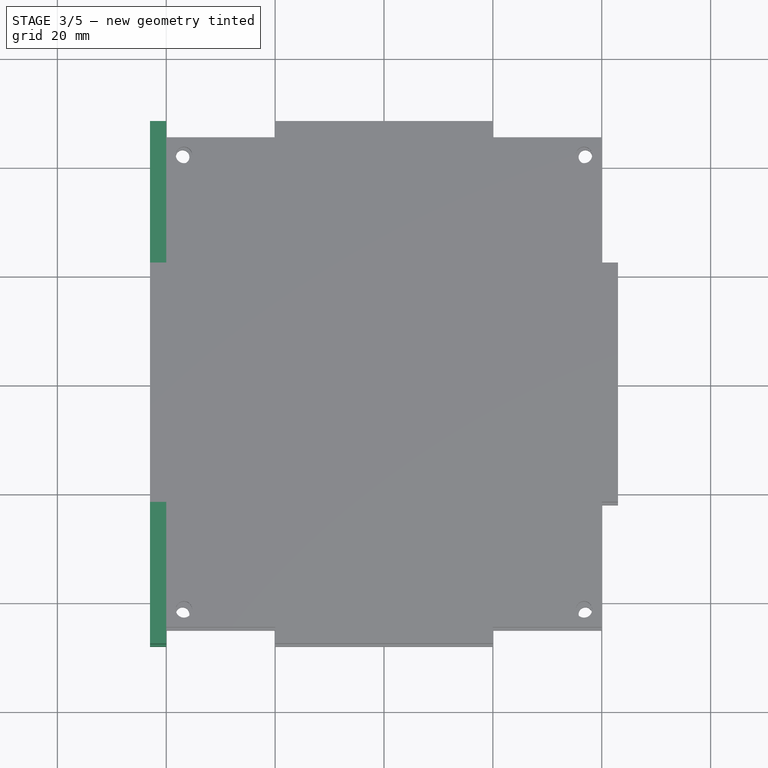
[diagram: stage 3 of 5 — top view after this stage's code; geometry added in this stage tinted green]
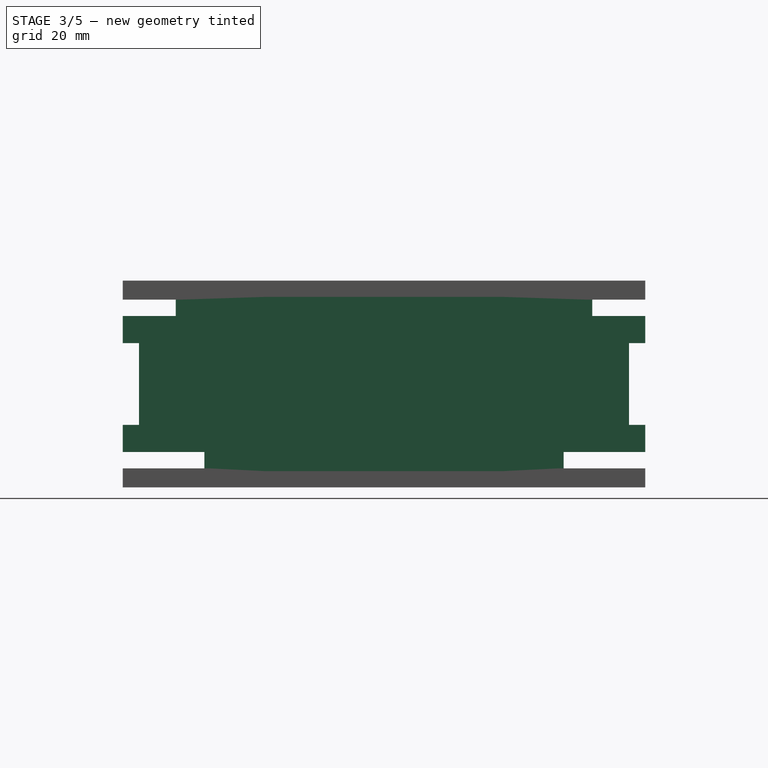
[diagram: stage 3 of 5 — right view after this stage's code; geometry added in this stage tinted green]
FEATURE [Part::Mirroring] Part__Mirroring001  label="TBRX"
  Base = (0,0,0)
  Normal = (1,0,0)
  Source = -> Extrude006
FEATURE [Part::Mirroring] Part__Mirroring002  label="TFRX"
  Base = (0,0,0)
  Normal = (0,1,0)
  Source = -> Part__Mirroring001
FEATURE [Part::Cut] Cut004
  Base = -> Extrude004
  Tool = -> Part__Mirroring005
FEATURE [Part::Cut] Cut005
  Base = -> Cut004
  Tool = -> Part__Mirroring004
FEATURE [Part::Cut] Cut006
  Base = -> Cut005
  Tool = -> Part__Mirroring002
FEATURE [Part::Cut] Cut007  label="RightPanel001"
  Base = -> Cut006
  Tool = -> Part__Mirroring001
FEATURE [Part::Mirroring] Part__Mirroring007  label="LeftPanel1"
  Base = (0,0,0)
  Normal = (1,0,0)
  Source = -> Cut007
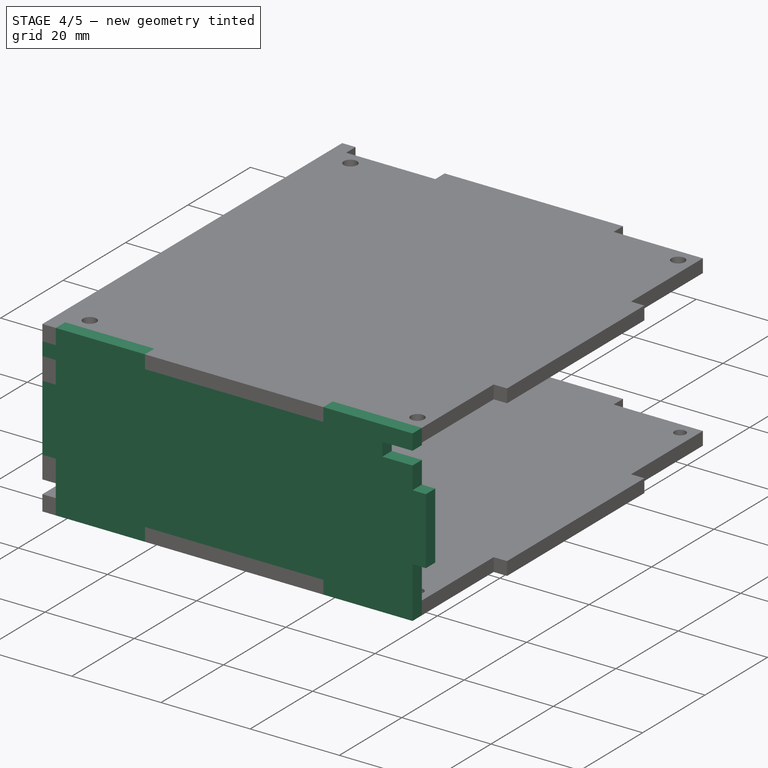
[diagram: stage 4 of 5 — iso view after this stage's code; geometry added in this stage tinted green]
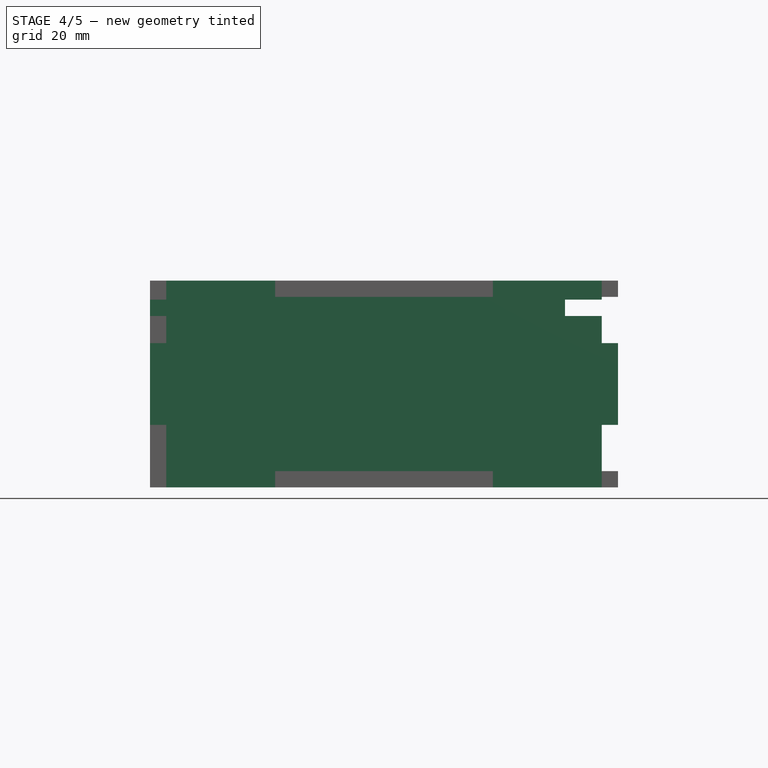
[diagram: stage 4 of 5 — front view after this stage's code; geometry added in this stage tinted green]
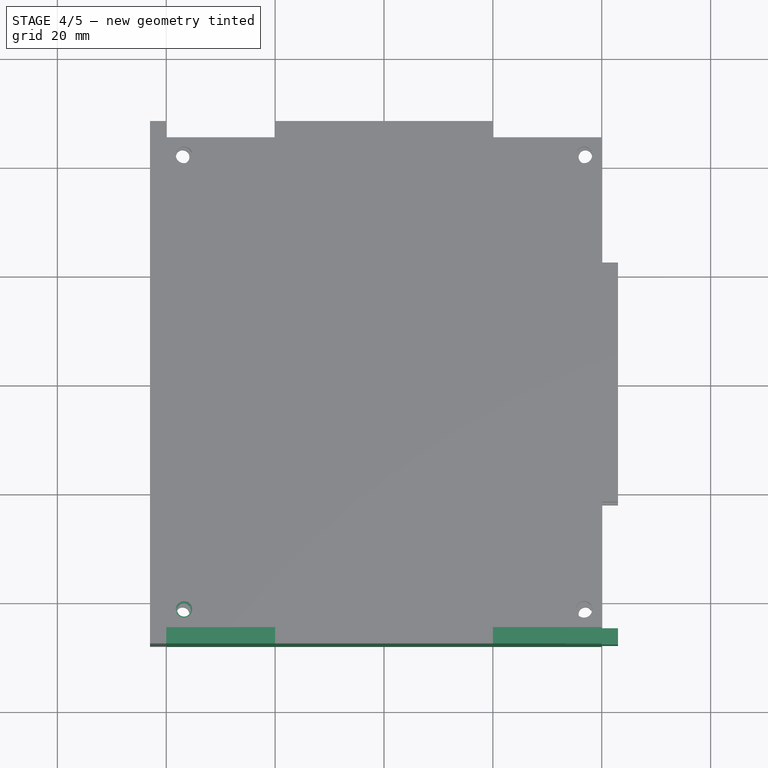
[diagram: stage 4 of 5 — top view after this stage's code; geometry added in this stage tinted green]
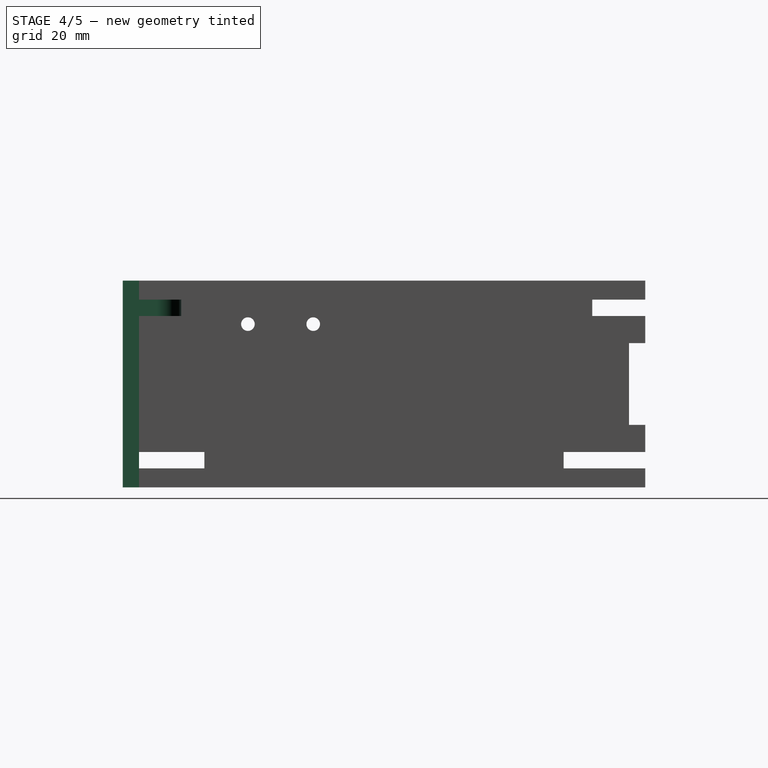
[diagram: stage 4 of 5 — right view after this stage's code; geometry added in this stage tinted green]
FEATURE [Part::Extrusion] Extrude002  label="FrontPanel1"
  Base = -> Sketch
  Dir = (0,-1,1.1e-15)
  DirMode = 2
  FaceMakerClass = Part::FaceMakerBullseye
  LengthFwd = 48
  LengthRev = -45
  Solid = true
  Symmetric = false
  expr: LengthFwd = <<Params>>.IL / 2 + <<Params>>.PThick
  expr: LengthRev = -<<Params>>.IL / 2
FEATURE [Part::Mirroring] Part__Mirroring  label="TFLX"
  Base = (0,0,0)
  Normal = (0,1,0)
  Source = -> Extrude006
FEATURE [Part::Cut] Cut
  Base = -> Extrude002
  Tool = -> Part__Mirroring002
FEATURE [Part::Mirroring] Part__Mirroring003  label="BFLX"
  Base = (0,0,0)
  Normal = (0,1,0)
  Source = -> Extrude007
FEATURE [App::DocumentObjectGroup] GrExplode_Slice002  label="FrontPanel005"
  Group = -> [Slice002_child0]
FEATURE [App::DocumentObjectGroup] Group001  label="FrontPanel"
  Group = -> [Extrude011,GrExplode_Slice002]
FEATURE [Sketcher::SketchObject] Sketch011  label="LeftPaneDecoration"
  ExternalGeometry = -> [Part__Mirroring007,Part__Mirroring003]
  FullyConstrained = true
  MapMode = 5
  Placement = pos=(-43,0,0) rot=(0.57735,-0.57735,-0.57735;2.0944rad)
  Support = -> [Part__Mirroring007]
  sketch-geometry (3):
    g0: Circle CenterX=25 CenterY=11 CenterZ=0 NormalX=0 NormalY=0 NormalZ=1 AngleXU=0 Radius=1.25
    g1: LineSegment StartX=25 StartY=11 StartZ=0 EndX=13 EndY=11 EndZ=0
    g2: Circle CenterX=13 CenterY=11 CenterZ=0 NormalX=0 NormalY=0 NormalZ=1 AngleXU=0 Radius=1.25
  constraints (8):
    c: Diameter(g0) = 2.5
    c: DistanceY(g0,g-3) = 5
    c: DistanceX(g0,g-4) = 12
    c: Coincident(g1,g0)
    c: Horizontal(g1)
    c: Coincident(g2,g1)
    c: Equal(g2,g0)
    c: DistanceX(g1,g1) = 12
FEATURE [Part::Extrusion] Extrude012  label="LeftPanelPunch"
  Base = -> Sketch011
  Dir = (-1,0,0)
  DirMode = 2
  FaceMakerClass = Part::FaceMakerBullseye
  LengthFwd = -4
  LengthRev = 0
  Solid = false
  Symmetric = false
FEATURE [Part::FeaturePython] Slice003  # WARN: FeaturePython — macro-defined, semantics opaque (R4)
  Base = -> Part__Mirroring007
  Mode = 1
  Tolerance = 0
  Tools = -> [Extrude012]
FEATURE [Part::FeaturePython] Slice003_child0  label="Slice003.0"  # WARN: FeaturePython — macro-defined, semantics opaque (R4)
  Base = -> Slice003
  FilterType = 1
  Invert = false
  OverrideMaxVal = 0
  WindowFrom = 80
  WindowTo = 100
  items = 0
FEATURE [App::DocumentObjectGroup] GrExplode_Slice003  label="LeftPanel002"
  Group = -> [Slice003_child0]
FEATURE [App::DocumentObjectGroup] Group005  label="LeftPanel"
  Group = -> [GrExplode_Slice003]
FEATURE [TechDraw::DrawSVGTemplate] Template001
  Height = 210
  Orientation = 1
  Width = 297
FEATURE [TechDraw::DrawViewPart] View001  label="BackPanelV"
  CoarseView = false
  Direction = (0,1,0)
  Focus = 100
  HardHidden = false
  IsoCount = 0
  IsoHidden = false
  IsoVisible = false
  LockPosition = false
  Perspective = false
  Rotation = 0
  ScaleType = 0
  SeamHidden = false
  SeamVisible = true
  SmoothHidden = false
  SmoothVisible = true
  Source = -> [Group]
  X = 46.8783
  XDirection = (-1,0,0)
  Y = 141.095
FEATURE [TechDraw::DrawViewPart] View  label="FrontPanelV"
  CoarseView = false
  Direction = (0,-1,0)
  Focus = 100
  HardHidden = false
  IsoCount = 0
  IsoHidden = false
  IsoVisible = false
  LockPosition = false
  Perspective = false
  Rotation = 0
  ScaleType = 0
  SeamHidden = false
  SeamVisible = true
  SmoothHidden = false
  SmoothVisible = true
  Source = -> [Group001]
  X = 46.323
  XDirection = (1,0,0)
  Y = 184.965
FEATURE [TechDraw::DrawViewPart] View002  label="LeftPanelV"
  CoarseView = false
  Direction = (-1,0,0)
  Focus = 100
  HardHidden = false
  IsoCount = 0
  IsoHidden = false
  IsoVisible = false
  LockPosition = false
  Perspective = false
  Rotation = 0
  ScaleType = 0
  SeamHidden = false
  SeamVisible = true
  SmoothHidden = false
  SmoothVisible = true
  Source = -> [GrExplode_Slice003]
  X = 51.3208
  XDirection = (0,-1,0)
  Y = 88.896
FEATURE [TechDraw::DrawViewPart] View003  label="RightPanelV"
  CoarseView = false
  Direction = (1,0,0)
  Focus = 100
  HardHidden = false
  IsoCount = 0
  IsoHidden = false
  IsoVisible = false
  LockPosition = false
  Perspective = false
  Rotation = 0
  ScaleType = 0
  SeamHidden = false
  SeamVisible = true
  SmoothHidden = false
  SmoothVisible = true
  Source = -> [Group006]
  X = 51.3208
  XDirection = (0,1,0)
  Y = 45.5819
FEATURE [TechDraw::DrawViewPart] View004  label="TopPanelV"
  CoarseView = false
  Direction = (0,0,1)
  Focus = 100
  HardHidden = false
  IsoCount = 0
  IsoHidden = false
  IsoVisible = false
  LockPosition = false
  Perspective = false
  Rotation = 90
  ScaleType = 0
  SeamHidden = false
  SeamVisible = true
  SmoothHidden = false
  SmoothVisible = true
  Source = -> [Group004]
  X = 146.279
  XDirection = (1,0,0)
  Y = 158.31
FEATURE [TechDraw::DrawViewPart] View006  label="DividerV"
  CoarseView = false
  Direction = (1,0,0)
  Focus = 100
  HardHidden = false
  IsoCount = 0
  IsoHidden = false
  IsoVisible = false
  LockPosition = false
  Perspective = false
  Rotation = 90
  ScaleType = 0
  SeamHidden = false
  SeamVisible = true
  SmoothHidden = false
  SmoothVisible = true
  Source = -> [Extrude008]
  X = 217.358
  XDirection = (0,1,0)
  Y = 181.633
FEATURE [TechDraw::DrawViewPart] View007  label="BottomFixingV1"
  CoarseView = false
  Direction = (0,0,1)
  Focus = 100
  HardHidden = false
  IsoCount = 0
  IsoHidden = false
  IsoVisible = false
  LockPosition = false
  Perspective = false
  Rotation = 0
  ScaleType = 0
  SeamHidden = false
  SeamVisible = true
  SmoothHidden = false
  SmoothVisible = true
  Source = -> [Extrude007]
  X = 222.912
  XDirection = (1,0,0)
  Y = 114.996
FEATURE [TechDraw::DrawViewPart] View008  label="BottomFixingV2"
  CoarseView = false
  Direction = (0,0,1)
  Focus = 100
  HardHidden = false
  IsoCount = 0
  IsoHidden = false
  IsoVisible = false
  LockPosition = false
  Perspective = false
  Rotation = 0
  ScaleType = 0
  SeamHidden = false
  SeamVisible = true
  SmoothHidden = false
  SmoothVisible = true
  Source = -> [Extrude007]
  X = 206.252
  XDirection = (1,0,0)
  Y = 115.551
FEATURE [TechDraw::DrawViewPart] View009  label="BottomFixingV3"
  CoarseView = false
  Direction = (0,0,1)
  Focus = 100
  HardHidden = false
  IsoCount = 0
  IsoHidden = false
  IsoVisible = false
  LockPosition = false
  Perspective = false
  Rotation = 0
  ScaleType = 0
  SeamHidden = false
  SeamVisible = true
  SmoothHidden = false
  SmoothVisible = true
  Source = -> [Extrude007]
  X = 219.58
  XDirection = (1,0,0)
  Y = 137.763
FEATURE [TechDraw::DrawViewPart] View010  label="BottomFixingV4"
  CoarseView = false
  Direction = (0,0,1)
  Focus = 100
  HardHidden = false
  IsoCount = 0
  IsoHidden = false
  IsoVisible = false
  LockPosition = false
  Perspective = false
  Rotation = 0
  ScaleType = 0
  SeamHidden = false
  SeamVisible = true
  SmoothHidden = false
  SmoothVisible = true
  Source = -> [Extrude007]
  X = 204.031
  XDirection = (1,0,0)
  Y = 137.208
FEATURE [TechDraw::DrawViewPart] View011  label="BottomPanelV"
  CoarseView = false
  Direction = (0,0,-1)
  Focus = 100
  HardHidden = false
  IsoCount = 0
  IsoHidden = false
  IsoVisible = false
  LockPosition = false
  Perspective = false
  Rotation = 90
  ScaleType = 0
  SeamHidden = false
  SeamVisible = true
  SmoothHidden = false
  SmoothVisible = true
  Source = -> [GrExplode_Slice001]
  X = 150.721
  XDirection = (1,0,0)
  Y = 64.4624
FEATURE [TechDraw::DrawViewPart] View012  label="TopFixingV1"
  CoarseView = false
  Direction = (0,0,1)
  Focus = 100
  HardHidden = false
  IsoCount = 0
  IsoHidden = false
  IsoVisible = false
  LockPosition = false
  Perspective = false
  Rotation = 0
  ScaleType = 0
  SeamHidden = false
  SeamVisible = true
  SmoothHidden = false
  SmoothVisible = true
  Source = -> [Extrude006]
  X = 221.246
  XDirection = (1,0,0)
  Y = 80.5664
FEATURE [TechDraw::DrawViewPart] View013  label="TopFixingV2"
  CoarseView = false
  Direction = (0,0,1)
  Focus = 100
  HardHidden = false
  IsoCount = 0
  IsoHidden = false
  IsoVisible = false
  LockPosition = false
  Perspective = false
  Rotation = 0
  ScaleType = 0
  SeamHidden = false
  SeamVisible = true
  SmoothHidden = false
  SmoothVisible = true
  Source = -> [Extrude006]
  X = 207.363
  XDirection = (1,0,0)
  Y = 80.5664
FEATURE [TechDraw::DrawViewPart] View014  label="TopFixingV3"
  CoarseView = false
  Direction = (0,0,1)
  Focus = 100
  HardHidden = false
  IsoCount = 0
  IsoHidden = false
  IsoVisible = false
  LockPosition = false
  Perspective = false
  Rotation = 0
  ScaleType = 0
  SeamHidden = false
  SeamVisible = true
  SmoothHidden = false
  SmoothVisible = true
  Source = -> [Extrude006]
  X = 220.135
  XDirection = (1,0,0)
  Y = 96.115
FEATURE [TechDraw::DrawViewPart] View015  label="TopFixingV4"
  CoarseView = false
  Direction = (0,0,1)
  Focus = 100
  HardHidden = false
  IsoCount = 0
  IsoHidden = false
  IsoVisible = false
  LockPosition = false
  Perspective = false
  Rotation = 0
  ScaleType = 0
  SeamHidden = false
  SeamVisible = true
  SmoothHidden = false
  SmoothVisible = true
  Source = -> [Extrude006]
  X = 206.808
  XDirection = (1,0,0)
  Y = 96.115
FEATURE [TechDraw::DrawPage] Page001
  KeepUpdated = true
  NextBalloonIndex = 1
  ProjectionType = 0
  Template = -> Template001
  Views = -> [View,View001,View002,View003,View004,View006,View007,View008,View009,View010,View011,View012,View013,View014,View015]
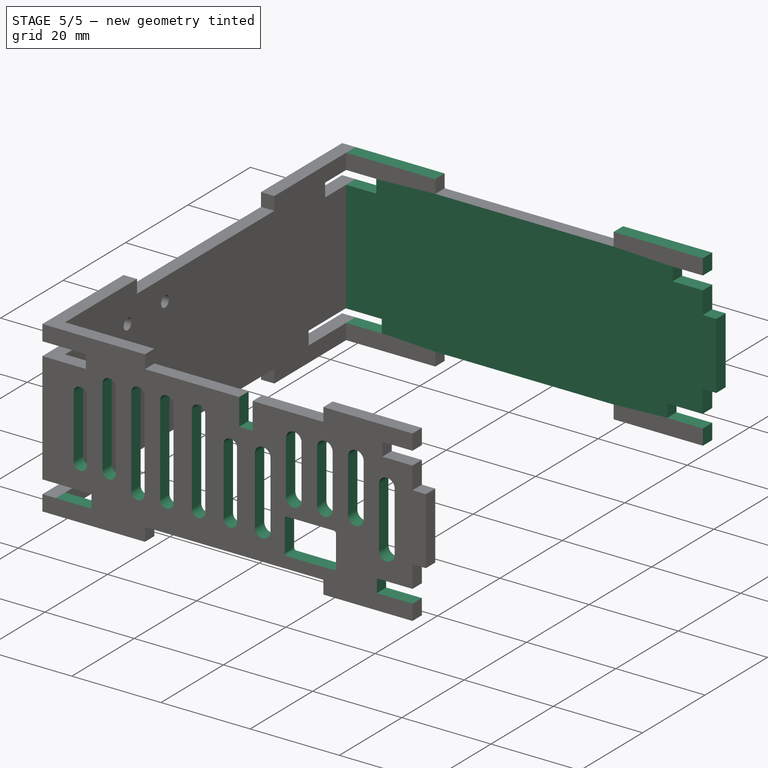
[diagram: stage 5 of 5 — iso view after this stage's code; geometry added in this stage tinted green]
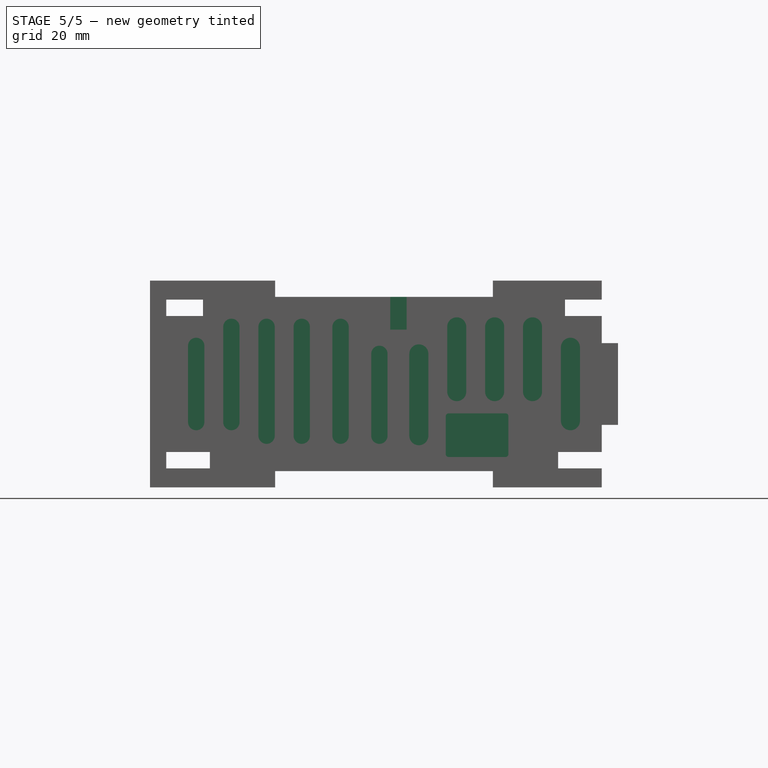
[diagram: stage 5 of 5 — front view after this stage's code; geometry added in this stage tinted green]
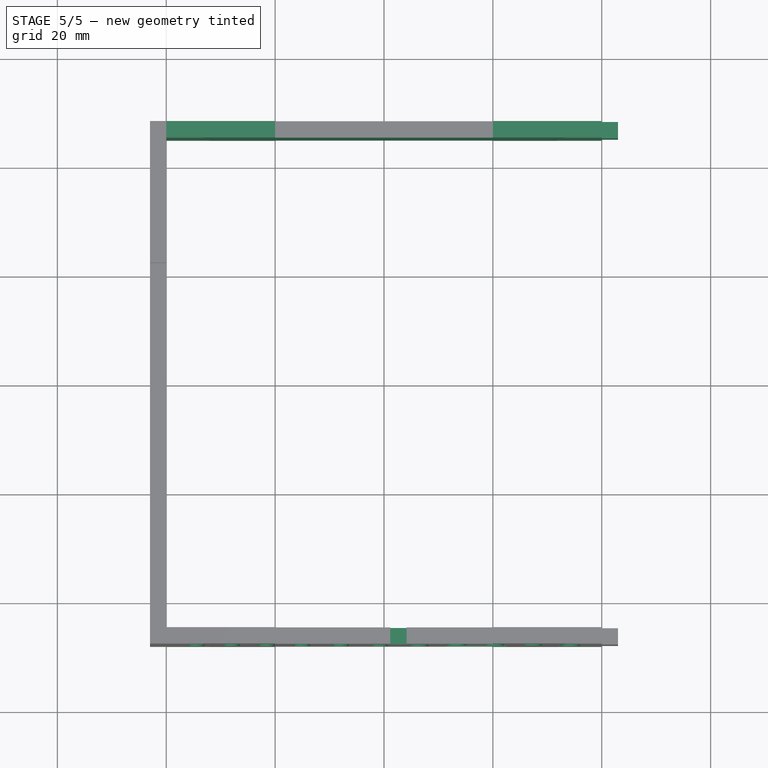
[diagram: stage 5 of 5 — top view after this stage's code; geometry added in this stage tinted green]
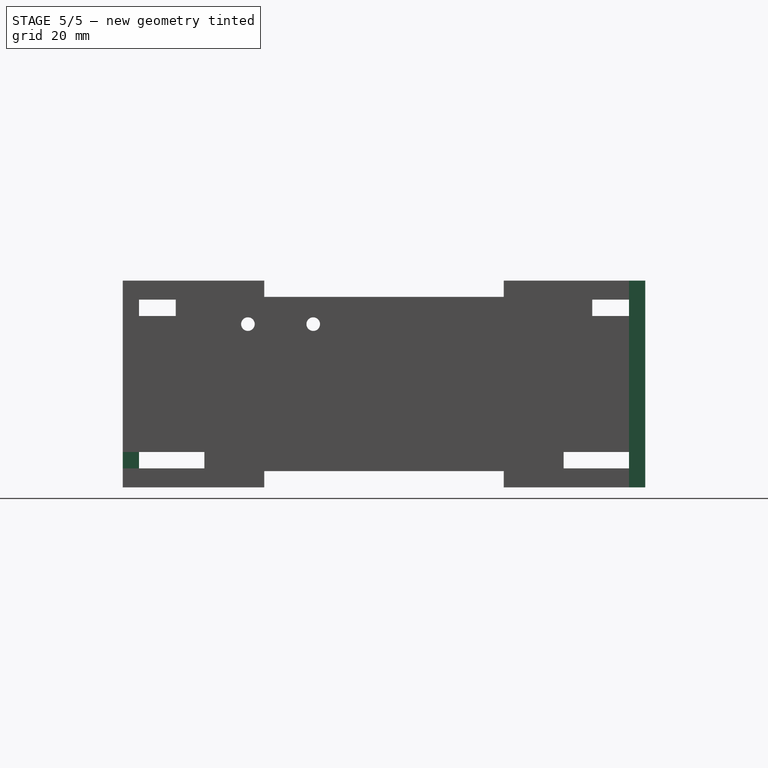
[diagram: stage 5 of 5 — right view after this stage's code; geometry added in this stage tinted green]
FEATURE [Part::Cut] Cut001  label="FrontPanel2"
  Base = -> Cut
  Tool = -> Part__Mirroring
FEATURE [Part::Cut] Cut002
  Base = -> Cut001
  Tool = -> Part__Mirroring005
FEATURE [Part::Cut] Cut003  label="FrontPanel004"
  Base = -> Cut002
  Tool = -> Part__Mirroring003
FEATURE [Part::Mirroring] Part__Mirroring006  label="BackPanel1"
  Base = (0,0,0)
  Normal = (0,1,0)
  Source = -> Cut003
FEATURE [Part::Cut] Cut008  label="FrontPanel003"
  Base = -> Cut003
  Tool = -> Extrude008
FEATURE [App::DocumentObjectGroup] GrExplode_Slice001  label="BottomPanel002"
  Group = -> [Slice001_child0]
FEATURE [Sketcher::SketchObject] Sketch010  label="FrontPanelDecoration"
  ExternalGeometry = -> [Part__Mirroring005,Cut008,Part__Mirroring007,Extrude008,Slice001_child0,Slice_child0,Cut007]
  FullyConstrained = false
  MapMode = 5
  Placement = pos=(0,-48,5.33e-14) rot=(1,0,0;1.5708rad)
  Support = -> [Cut008]
  sketch-geometry (83):
    g0: LineSegment StartX=11.85 StartY=-5.4 StartZ=0 EndX=22.35 EndY=-5.4 EndZ=0
    g1: LineSegment StartX=22.85 StartY=-5.9 StartZ=0 EndX=22.85 EndY=-12.9 EndZ=0
    g2: LineSegment StartX=22.35 StartY=-13.4 StartZ=0 EndX=11.85 EndY=-13.4 EndZ=0
    g3: LineSegment StartX=11.35 StartY=-12.9 StartZ=0 EndX=11.35 EndY=-5.9 EndZ=0
    g4: LineSegment StartX=13.7 StartY=-8.5 StartZ=0 EndX=20.5 EndY=-8.5 EndZ=0
    g5: LineSegment StartX=20.5 StartY=-8.5 StartZ=0 EndX=20.5 EndY=-10.3 EndZ=0
    g6: LineSegment StartX=20.5 StartY=-10.3 StartZ=0 EndX=13.7 EndY=-10.3 EndZ=0
    g7: LineSegment StartX=13.7 StartY=-10.3 StartZ=0 EndX=13.7 EndY=-8.5 EndZ=0
    g8: GeomPoint X=17.1 Y=-9.4 Z=0
    g9: ArcOfCircle CenterX=11.85 CenterY=-5.9 CenterZ=0 NormalX=0 NormalY=0 NormalZ=1 AngleXU=0 Radius=0.5 StartAngle=1.5708 EndAngle=3.14159
    g10: GeomPoint X=11.35 Y=-5.4 Z=0
    g11: ArcOfCircle CenterX=11.85 CenterY=-12.9 CenterZ=0 NormalX=0 NormalY=0 NormalZ=1 AngleXU=0 Radius=0.5 StartAngle=3.14159 EndAngle=4.71239
    g12: GeomPoint X=11.35 Y=-13.4 Z=0
    g13: ArcOfCircle CenterX=22.35 CenterY=-12.9 CenterZ=0 NormalX=0 NormalY=0 NormalZ=1 AngleXU=0 Radius=0.5 StartAngle=4.71239 EndAngle=6.28319
    g14: GeomPoint X=22.85 Y=-13.4 Z=0
    g15: ArcOfCircle CenterX=22.35 CenterY=-5.9 CenterZ=0 NormalX=0 NormalY=0 NormalZ=1 AngleXU=0 Radius=0.5 StartAngle=5e-16 EndAngle=1.5708
    g16: GeomPoint X=22.85 Y=-5.4 Z=0
    g17: GeomPoint X=1.15 Y=0 Z=0
    g18: ArcOfCircle CenterX=6.4 CenterY=5.53486 CenterZ=0 NormalX=0 NormalY=0 NormalZ=1 AngleXU=0 Radius=1.75 StartAngle=1e-16 EndAngle=3.14159
    g19: ArcOfCircle CenterX=6.4 CenterY=-9.5 CenterZ=0 NormalX=0 NormalY=0 NormalZ=1 AngleXU=0 Radius=1.75 StartAngle=3.14159 EndAngle=6.28319
    g20: LineSegment StartX=4.65 StartY=5.53486 StartZ=0 EndX=4.65 EndY=-9.5 EndZ=0
    g21: LineSegment StartX=8.15 StartY=5.53486 StartZ=0 EndX=8.15 EndY=-9.5 EndZ=0
    g22: ArcOfCircle CenterX=13.3625 CenterY=10.5 CenterZ=0 NormalX=0 NormalY=0 NormalZ=1 AngleXU=0 Radius=1.75 StartAngle=6e-16 EndAngle=3.14159
    g23: ArcOfCircle CenterX=13.3625 CenterY=-1.4 CenterZ=0 NormalX=0 NormalY=0 NormalZ=1 AngleXU=0 Radius=1.75 StartAngle=3.14159 EndAngle=6.28319
    g24: LineSegment StartX=11.6125 StartY=10.5 StartZ=0 EndX=11.6125 EndY=-1.4 EndZ=0
    g25: LineSegment StartX=15.1125 StartY=10.5 StartZ=0 EndX=15.1125 EndY=-1.4 EndZ=0
    g26: ArcOfCircle CenterX=20.325 CenterY=10.5 CenterZ=0 NormalX=0 NormalY=0 NormalZ=1 AngleXU=0 Radius=1.75 StartAngle=0 EndAngle=3.14159
    g27: ArcOfCircle CenterX=20.325 CenterY=-1.4 CenterZ=0 NormalX=0 NormalY=0 NormalZ=1 AngleXU=0 Radius=1.75 StartAngle=3.14159 EndAngle=6.28319
    g28: LineSegment StartX=18.575 StartY=10.5 StartZ=0 EndX=18.575 EndY=-1.4 EndZ=0
    g29: LineSegment StartX=22.075 StartY=10.5 StartZ=0 EndX=22.075 EndY=-1.4 EndZ=0
    g30: ArcOfCircle CenterX=27.2875 CenterY=10.5 CenterZ=0 NormalX=0 NormalY=0 NormalZ=1 AngleXU=0 Radius=1.75 StartAngle=4e-16 EndAngle=3.14159
    g31: ArcOfCircle CenterX=27.2875 CenterY=-1.4 CenterZ=0 NormalX=0 NormalY=0 NormalZ=1 AngleXU=0 Radius=1.75 StartAngle=3.14159 EndAngle=6.28319
    g32: LineSegment StartX=25.5375 StartY=10.5 StartZ=0 EndX=25.5375 EndY=-1.4 EndZ=0
    g33: LineSegment StartX=29.0375 StartY=10.5 StartZ=0 EndX=29.0375 EndY=-1.4 EndZ=0
    g34: ArcOfCircle CenterX=34.25 CenterY=6.75 CenterZ=0 NormalX=0 NormalY=0 NormalZ=1 AngleXU=0 Radius=1.75 StartAngle=1e-16 EndAngle=3.14159
    g35: ArcOfCircle CenterX=34.25 CenterY=-6.75 CenterZ=0 NormalX=0 NormalY=0 NormalZ=1 AngleXU=0 Radius=1.75 StartAngle=3.14159 EndAngle=6.28319
    g36: LineSegment StartX=32.5 StartY=6.75 StartZ=0 EndX=32.5 EndY=-6.75 EndZ=0
    g37: LineSegment StartX=36 StartY=6.75 StartZ=0 EndX=36 EndY=-6.75 EndZ=0
    g38: LineSegment StartX=15.1125 StartY=10.5 StartZ=0 EndX=18.575 EndY=10.5 EndZ=0
    g39: LineSegment StartX=22.075 StartY=10.5 StartZ=0 EndX=25.5375 EndY=10.5 EndZ=0
    g40: LineSegment StartX=8.15 StartY=5.53486 StartZ=0 EndX=11.6125 EndY=5.53486 EndZ=0
    g41: LineSegment StartX=4.15 StartY=10 StartZ=0 EndX=6.4 EndY=5.53486 EndZ=0
    g42: ArcOfCircle CenterX=-15.1125 CenterY=10.5 CenterZ=0 NormalX=0 NormalY=0 NormalZ=1 AngleXU=0 Radius=1.5 StartAngle=0 EndAngle=3.14159
    g43: ArcOfCircle CenterX=-15.1125 CenterY=-9.5 CenterZ=0 NormalX=0 NormalY=0 NormalZ=1 AngleXU=0 Radius=1.5 StartAngle=3.14159 EndAngle=6.28319
    g44: LineSegment StartX=-16.6125 StartY=10.5 StartZ=0 EndX=-16.6125 EndY=-9.5 EndZ=0
    g45: LineSegment StartX=-13.6125 StartY=10.5 StartZ=0 EndX=-13.6125 EndY=-9.5 EndZ=0
    g46: ArcOfCircle CenterX=-21.575 CenterY=10.5 CenterZ=0 NormalX=0 NormalY=0 NormalZ=1 AngleXU=0 Radius=1.5 StartAngle=0 EndAngle=3.14159
    g47: ArcOfCircle CenterX=-21.575 CenterY=-9.5 CenterZ=0 NormalX=0 NormalY=0 NormalZ=1 AngleXU=0 Radius=1.5 StartAngle=3.14159 EndAngle=6.28319
    g48: LineSegment StartX=-23.075 StartY=10.5 StartZ=0 EndX=-23.075 EndY=-9.5 EndZ=0
    g49: LineSegment StartX=-20.075 StartY=10.5 StartZ=0 EndX=-20.075 EndY=-9.5 EndZ=0
    g50: ArcOfCircle CenterX=-28.0375 CenterY=10.5 CenterZ=0 NormalX=0 NormalY=0 NormalZ=1 AngleXU=0 Radius=1.5 StartAngle=4e-16 EndAngle=3.14159
    g51: ArcOfCircle CenterX=-28.0375 CenterY=-7 CenterZ=0 NormalX=0 NormalY=0 NormalZ=1 AngleXU=0 Radius=1.5 StartAngle=3.14159 EndAngle=6.28319
    g52: LineSegment StartX=-29.5375 StartY=10.5 StartZ=0 EndX=-29.5375 EndY=-7 EndZ=0
    g53: LineSegment StartX=-26.5375 StartY=10.5 StartZ=0 EndX=-26.5375 EndY=-7 EndZ=0
    g54: ArcOfCircle CenterX=-34.5 CenterY=7 CenterZ=0 NormalX=0 NormalY=0 NormalZ=1 AngleXU=0 Radius=1.5 StartAngle=0 EndAngle=3.14159
    g55: ArcOfCircle CenterX=-34.5 CenterY=-7 CenterZ=0 NormalX=0 NormalY=0 NormalZ=1 AngleXU=0 Radius=1.5 StartAngle=3.14159 EndAngle=6.28319
    g56: LineSegment StartX=-36 StartY=7 StartZ=0 EndX=-36 EndY=-7 EndZ=0
    g57: LineSegment StartX=-33 StartY=7 StartZ=0 EndX=-33 EndY=-7 EndZ=0
    g58: LineSegment StartX=-26.5375 StartY=10.5 StartZ=0 EndX=-23.075 EndY=10.5 EndZ=0
    g59: LineSegment StartX=-20.075 StartY=10.5 StartZ=0 EndX=-16.6125 EndY=10.5 EndZ=0
    g60: ArcOfCircle CenterX=-7.98125 CenterY=10.5 CenterZ=0 NormalX=0 NormalY=0 NormalZ=1 AngleXU=0 Radius=1.5 StartAngle=0 EndAngle=3.14159
    g61: ArcOfCircle CenterX=-7.98125 CenterY=-9.5 CenterZ=0 NormalX=0 NormalY=0 NormalZ=1 AngleXU=0 Radius=1.5 StartAngle=3.14159 EndAngle=6.28319
    g62: LineSegment StartX=-9.48125 StartY=10.5 StartZ=0 EndX=-9.48125 EndY=-9.5 EndZ=0
    g63: LineSegment StartX=-6.48125 StartY=10.5 StartZ=0 EndX=-6.48125 EndY=-9.5 EndZ=0
    g64: LineSegment StartX=-13.6125 StartY=10.5 StartZ=0 EndX=-9.48125 EndY=10.5 EndZ=0
    g65: ArcOfCircle CenterX=-0.85 CenterY=5.53486 CenterZ=0 NormalX=0 NormalY=0 NormalZ=1 AngleXU=0 Radius=1.5 StartAngle=0 EndAngle=3.14159
    g66: ArcOfCircle CenterX=-0.85 CenterY=-9.5 CenterZ=0 NormalX=0 NormalY=0 NormalZ=1 AngleXU=0 Radius=1.5 StartAngle=3.14159 EndAngle=6.28319
    g67: LineSegment StartX=-2.35 StartY=5.53486 StartZ=0 EndX=-2.35 EndY=-9.5 EndZ=0
    g68: LineSegment StartX=0.65 StartY=5.53486 StartZ=0 EndX=0.65 EndY=-9.5 EndZ=0
    g69: LineSegment StartX=6.4 StartY=-9.5 StartZ=0 EndX=-0.85 EndY=-9.5 EndZ=0
    g70: LineSegment StartX=-6.48125 StartY=-9.5 StartZ=0 EndX=-2.35 EndY=-9.5 EndZ=0
    g71: LineSegment StartX=11.6125 StartY=10.5 StartZ=0 EndX=-6.48125 EndY=10.5 EndZ=0
    g72: LineSegment StartX=-33 StartY=7 StartZ=0 EndX=-29.5375 EndY=7 EndZ=0
    g73: LineSegment StartX=32.5 StartY=6.75 StartZ=0 EndX=29.0375 EndY=6.75 EndZ=0
    g74: LineSegment StartX=-34.5 StartY=7 StartZ=0 EndX=-34.5 EndY=8.5 EndZ=0
    g75: LineSegment StartX=-21.575 StartY=10.5 StartZ=0 EndX=-21.575 EndY=12 EndZ=0
    g76: LineSegment StartX=-21.575 StartY=-9.5 StartZ=0 EndX=-21.575 EndY=-11 EndZ=0
    g77: LineSegment StartX=-33 StartY=-7 StartZ=0 EndX=-29.5375 EndY=-7 EndZ=0
    g78: LineSegment StartX=-0.85 StartY=5.53486 StartZ=0 EndX=6.4 EndY=5.53486 EndZ=0
    g79: LineSegment StartX=20.325 StartY=10.5 StartZ=0 EndX=20.325 EndY=12.25 EndZ=0
    g80: LineSegment StartX=-34.5 StartY=-7 StartZ=0 EndX=-34.5 EndY=-8.5 EndZ=0
    g81: LineSegment StartX=34.25 StartY=-6.75 StartZ=0 EndX=34.25 EndY=-8.5 EndZ=0
    g82: LineSegment StartX=34.25 StartY=6.75 StartZ=0 EndX=34.25 EndY=8.5 EndZ=0
  constraints (205):
    c: Horizontal(g0)
    c: Horizontal(g2)
    c: Vertical(g1)
    c: Vertical(g3)
    c: DistanceY(g12,g10) = 8
    c: DistanceX(g10,g16) = 11.5
    c: Coincident(g4,g5)
    c: Coincident(g5,g6)
    c: Coincident(g6,g7)
    c: Coincident(g7,g4)
    c: Horizontal(g4)
    c: Horizontal(g6)
    c: Vertical(g5)
    c: Vertical(g7)
    c: DistanceX(g6,g6) = 6.8
    c: DistanceY(g5,g5) = 1.8
    c: Symmetric(g14,g10,g8)
    c: Symmetric(g4,g5,g8)
    c: DistanceY(g-3,g5) = 2.2
    c: DistanceX(g4,g-3) = 13.5
    c: PointOnObject(g10,g0)
    c: PointOnObject(g10,g3)
    c: Tangent(g0,g9) = 1.5708
    c: Tangent(g3,g9) = 1.5708
    c: PointOnObject(g12,g3)
    c: PointOnObject(g12,g2)
    c: Tangent(g3,g11) = 1.5708
    c: Tangent(g2,g11) = 1.5708
    c: PointOnObject(g14,g2)
    c: PointOnObject(g14,g1)
    c: Tangent(g2,g13) = 1.5708
    c: Tangent(g1,g13) = 1.5708
    c: PointOnObject(g16,g1)
    c: PointOnObject(g16,g0)
    c: Tangent(g1,g15) = 1.5708
    c: Tangent(g0,g15) = 1.5708
    c: Equal(g9,g11)
    c: Equal(g11,g13)
    c: Equal(g13,g15)
    c: Radius(g9) = 0.5
    c: PointOnObject(g17,g-1)
    c: Tangent(g18,g21) = 1.5708
    c: Tangent(g18,g20) = -1.5708
    c: Tangent(g20,g19) = -1.5708
    c: Tangent(g21,g19) = 1.5708
    c: Vertical(g20)
    c: Equal(g18,g19)
    c: Diameter(g18) = 3.5
    c: Tangent(g22,g25) = 1.5708
    c: Tangent(g22,g24) = -1.5708
    c: Tangent(g24,g23) = -1.5708
    c: Tangent(g25,g23) = 1.5708
    c: Vertical(g24)
    c: Equal(g22,g23)
    c: Equal(g18,g22) = 2.5
    c: Tangent(g26,g29) = 1.5708
    c: Tangent(g26,g28) = -1.5708
    c: Tangent(g28,g27) = -1.5708
    c: Tangent(g29,g27) = 1.5708
    c: Vertical(g28)
    c: Equal(g26,g27)
    c: Equal(g18,g26) = 2.5
    c: Tangent(g30,g33) = 1.5708
    c: Tangent(g30,g32) = -1.5708
    c: Tangent(g32,g31) = -1.5708
    c: Tangent(g33,g31) = 1.5708
    c: Vertical(g32)
    c: Equal(g30,g31)
    c: Equal(g18,g30) = 2.5
    c: Tangent(g34,g37) = 1.5708
    c: Tangent(g34,g36) = -1.5708
    c: Tangent(g36,g35) = -1.5708
    c: Tangent(g37,g35) = 1.5708
    c: Vertical(g36)
    c: Equal(g34,g35)
    c: Equal(g18,g34) = 2.5
    c: Coincident(g38,g22)
    c: Coincident(g38,g26)
    c: Coincident(g39,g26)
    c: Coincident(g39,g30)
    c: Horizontal(g39)
    c: Coincident(g40,g18)
    c: PointOnObject(g40,g24)
    c: Horizontal(g40)
    c: Horizontal(g38)
    c: Equal(g40,g38)
    c: Equal(g38,g39)
    c: Equal(g24,g28)
    c: Equal(g28,g32)
    c: Coincident(g41,g18)
    c: Distance(g41) = 5
    c: Tangent(g42,g45) = 1.5708
    c: Tangent(g42,g44) = -1.5708
    c: Tangent(g44,g43) = -1.5708
    c: Tangent(g45,g43) = 1.5708
    c: Vertical(g44)
    c: Equal(g42,g43)
    c: Tangent(g46,g49) = 1.5708
    c: Tangent(g46,g48) = -1.5708
    c: Tangent(g48,g47) = -1.5708
    c: Tangent(g49,g47) = 1.5708
    c: Vertical(g48)
    c: Equal(g46,g47)
    c: Tangent(g50,g53) = 1.5708
    c: Tangent(g50,g52) = -1.5708
    c: Tangent(g52,g51) = -1.5708
    c: Tangent(g53,g51) = 1.5708
    c: Vertical(g52)
    c: Equal(g50,g51)
    c: Tangent(g54,g57) = 1.5708
    c: Tangent(g54,g56) = -1.5708
    c: Tangent(g56,g55) = -1.5708
    c: Tangent(g57,g55) = 1.5708
    c: Vertical(g56)
    c: Equal(g54,g55)
    c: Equal(g42,g46)
    c: Equal(g46,g50)
    c: Equal(g50,g54)
    c: Coincident(g58,g50)
    c: Coincident(g58,g46)
    c: Coincident(g59,g46)
    c: Coincident(g59,g42)
    c: Horizontal(g59)
    c: Horizontal(g58)
    c: Equal(g48,g44)
    c: Equal(g40,g59)
    c: Equal(g59,g58)
    c: Tangent(g60,g63) = 1.5708
    c: Tangent(g60,g62) = -1.5708
    c: Tangent(g62,g61) = -1.5708
    c: Tangent(g63,g61) = 1.5708
    c: Vertical(g62)
    c: Equal(g60,g61)
    c: Coincident(g64,g42)
    c: Coincident(g64,g60)
    c: Horizontal(g64)
    c: Equal(g44,g62)
    c: Tangent(g65,g68) = 1.5708
    c: Tangent(g65,g67) = -1.5708
    c: Tangent(g67,g66) = -1.5708
    c: Tangent(g68,g66) = 1.5708
    c: Vertical(g67)
    c: Equal(g65,g66)
    c: Coincident(g69,g19)
    c: Coincident(g69,g66)
    c: Horizontal(g69)
    c: Coincident(g70,g61)
    c: Coincident(g70,g66)
    c: Horizontal(g70)
    c: Equal(g64,g70)
    c: Coincident(g71,g22)
    c: Coincident(g71,g60)
    c: Horizontal(g71)
    c: Coincident(g72,g54)
    c: PointOnObject(g72,g52)
    c: Horizontal(g72)
    c: Equal(g72,g58)
    c: Coincident(g73,g34)
    c: PointOnObject(g73,g33)
    c: Horizontal(g73)
    c: Equal(g39,g73)
    c: Coincident(g74,g54)
    c: PointOnObject(g74,g54)
    c: Vertical(g74)
    c: DistanceY(g74,g-5) = 4
    c: DistanceX(g-5,g54) = 4
    c: Coincident(g75,g46)
    c: PointOnObject(g75,g46)
    c: Vertical(g75)
    c: Coincident(g76,g47)
    c: PointOnObject(g76,g47)
    c: Vertical(g76)
    c: DistanceY(g75,g-9) = 4
    c: DistanceY(g-8,g76) = 5
    c: Coincident(g77,g55)
    c: Coincident(g77,g51)
    c: Horizontal(g77)
    c: Coincident(g78,g65)
    c: Coincident(g78,g18)
    c: Horizontal(g78)
    c: DistanceX(g65,g-7) = 0.5
    c: Coincident(g-10,g41)
    c: DistanceX(g41,g18) = 0.5
    c: DistanceX(g34,g-11) = 4
    c: Coincident(g79,g26)
    c: PointOnObject(g79,g26)
    c: Vertical(g79)
    c: DistanceY(g16,g27) = 4
    c: Coincident(g80,g55)
    c: PointOnObject(g80,g55)
    c: Vertical(g80)
    c: Coincident(g81,g35)
    c: PointOnObject(g81,g35)
    c: Vertical(g81)
    c: DistanceY(g-6,g80) = 4
    c: DistanceY(g-12,g81) = 4
    c: Coincident(g82,g34)
    c: PointOnObject(g82,g34)
    c: Vertical(g82)
    c: DistanceY(g82,g-11) = 4
    c: Equal(g42,g60)
    c: Diameter(g60) = 3
    c: Equal(g60,g65)
    c: DistanceX(g39,g39) = 3.4625
    c: DistanceX(g43,g61) = 4.13125
FEATURE [App::DocumentObjectGroup] Group  label="BackPanel"
  Group = -> [Part__Mirroring006]
FEATURE [App::DocumentObjectGroup] Group002  label="Divider"
  Group = -> [Extrude008]
FEATURE [App::DocumentObjectGroup] Group003  label="BottomPanel"
  Group = -> [GrExplode_Slice001]
FEATURE [App::DocumentObjectGroup] Group004  label="TopPanel"
  Group = -> [GrExplode_Slice]
FEATURE [App::DocumentObjectGroup] Group006  label="RightPanel"
  Group = -> [Cut007]
FEATURE [App::DocumentObjectGroup] Group007  label="BottomFixings"
  Group = -> [Part__Mirroring004,Extrude007,Part__Mirroring005,Part__Mirroring003]
FEATURE [App::DocumentObjectGroup] Group008  label="TopFixings"
  Group = -> [Part__Mirroring002,Part__Mirroring001,Extrude006,Part__Mirroring]
FEATURE [App::DocumentObjectGroup] Group009  label="PCA"
  Group = -> [Sketch007]
FEATURE [Part::Extrusion] Extrude011  label="FrontPanelPunch"
  Base = -> Sketch010
  Dir = (0,-1,1.1e-15)
  DirMode = 2
  FaceMakerClass = Part::FaceMakerBullseye
  LengthFwd = -4
  LengthRev = 0
  Solid = false
  Symmetric = false
FEATURE [Part::FeaturePython] Slice002  # WARN: FeaturePython — macro-defined, semantics opaque (R4)
  Base = -> Cut008
  Mode = 1
  Tolerance = 0
  Tools = -> [Extrude011]
FEATURE [Part::FeaturePython] Slice002_child0  label="Slice002.0"  # WARN: FeaturePython — macro-defined, semantics opaque (R4)
  Base = -> Slice002
  FilterType = 1
  Invert = false
  OverrideMaxVal = 0
  WindowFrom = 80
  WindowTo = 100
  items = 0
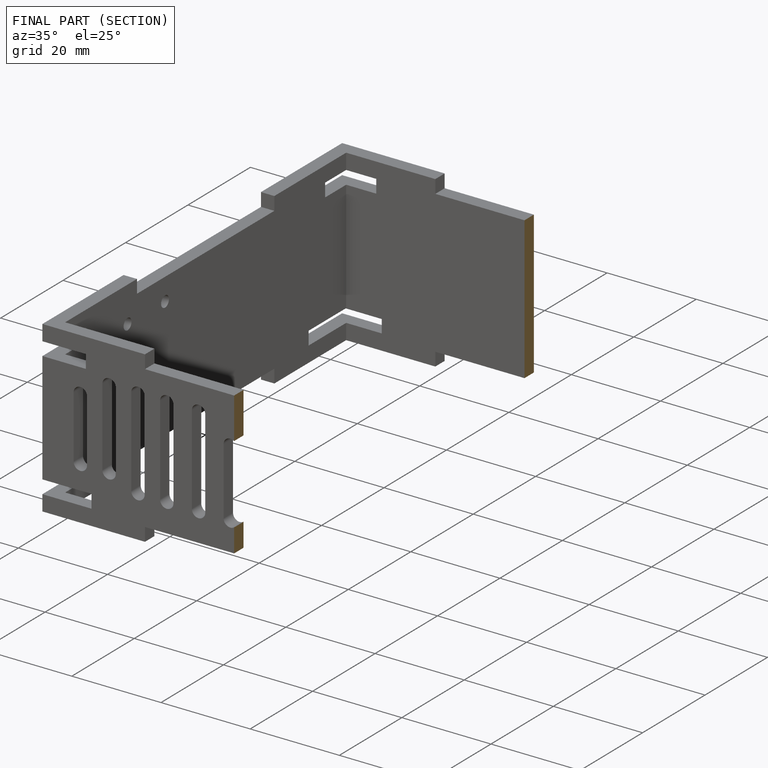
[diagram: finished part — half-section view (interior)]
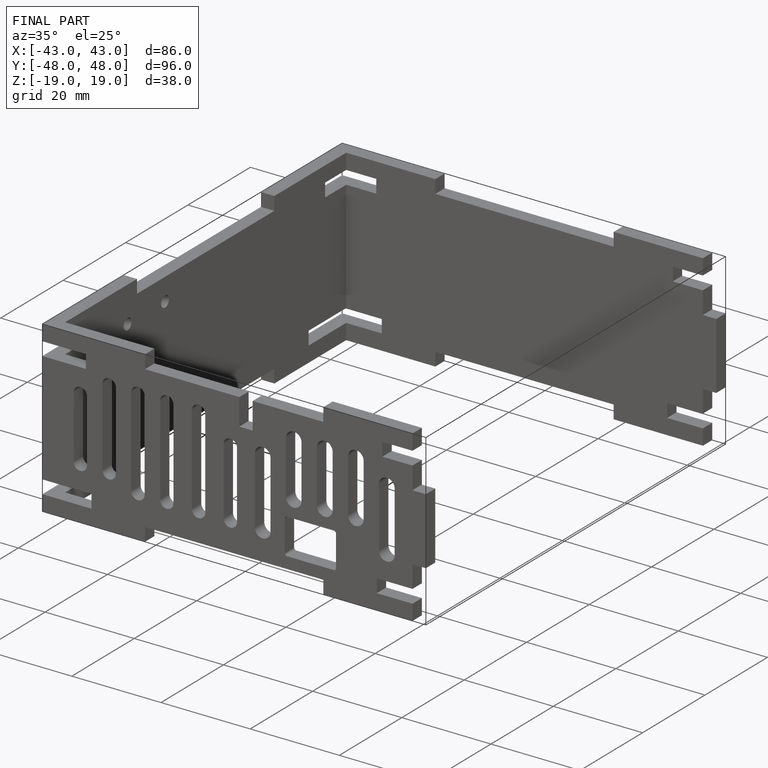
[diagram: finished part — iso view with bounding-box wireframe]
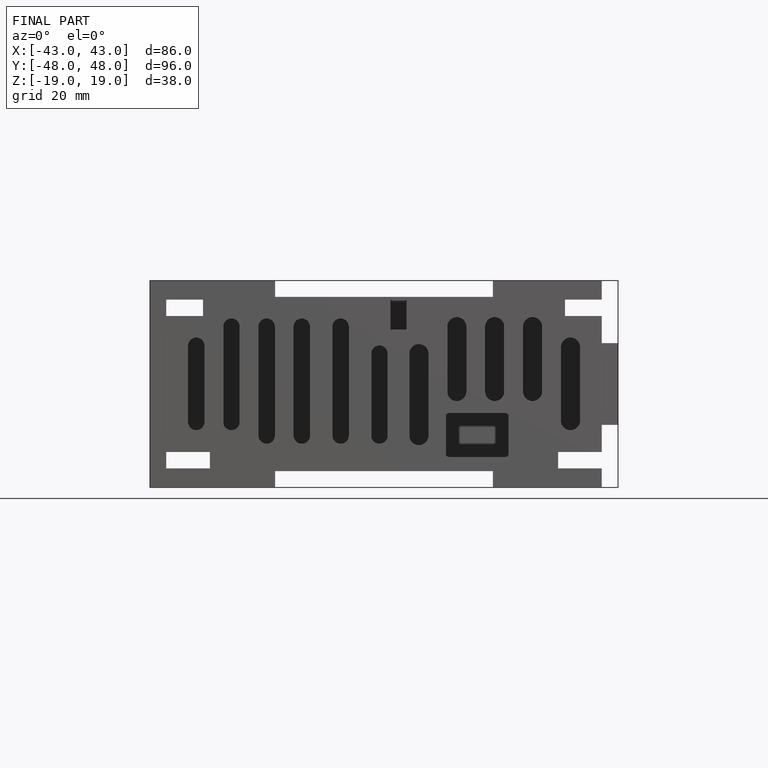
[diagram: finished part — front view with bounding-box wireframe]
